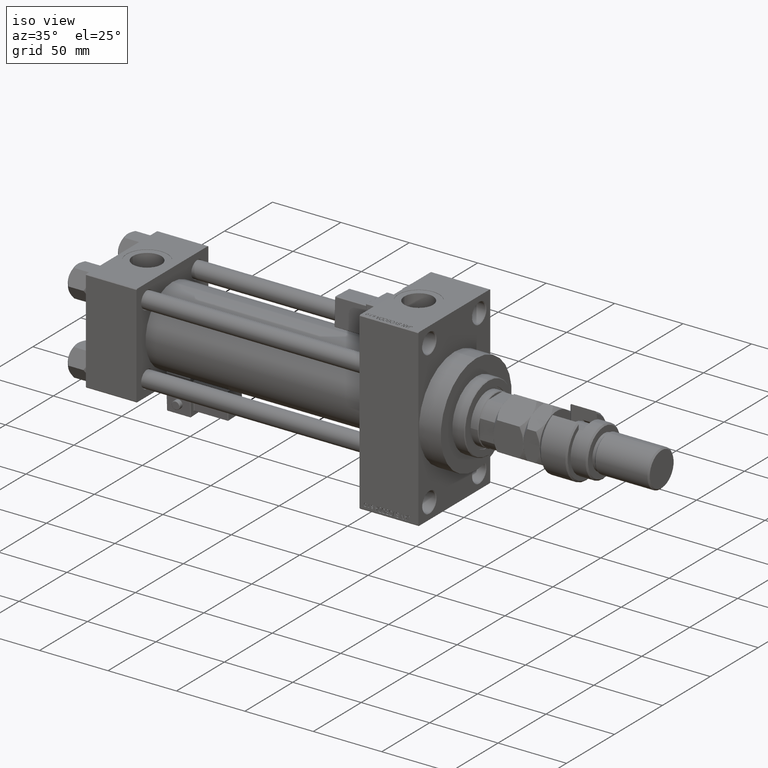
[diagram: clean part render]
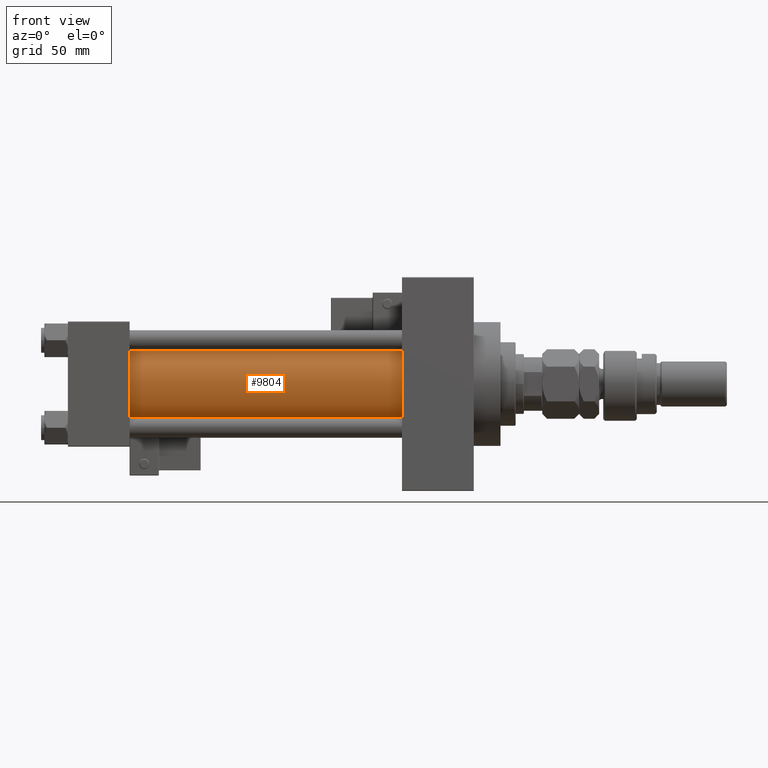
[diagram: tour spotlight — one face highlighted and labeled with its STEP entity id]
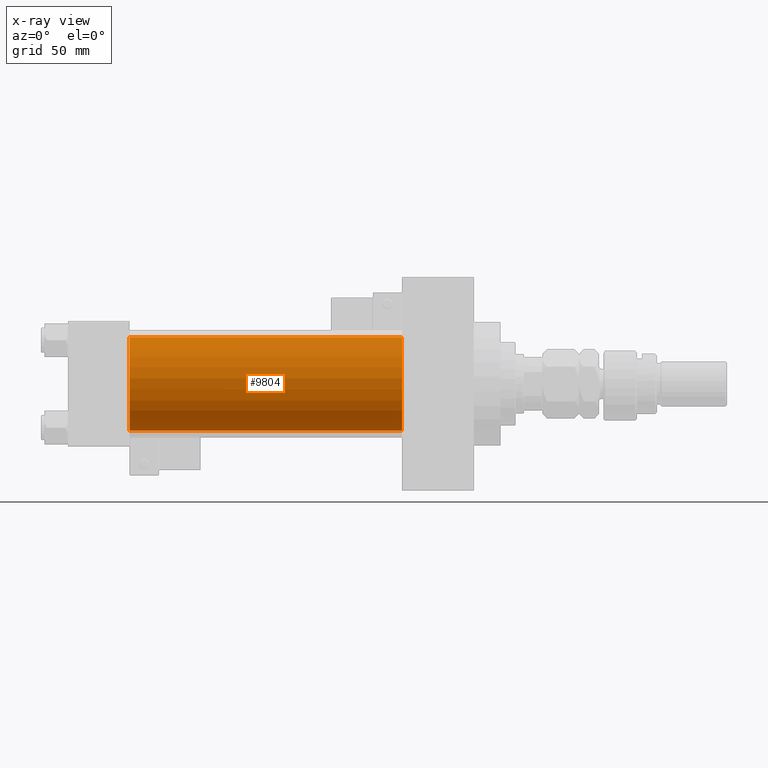
[diagram: x-ray of the same camera — body ghosted, this tour face saturated]
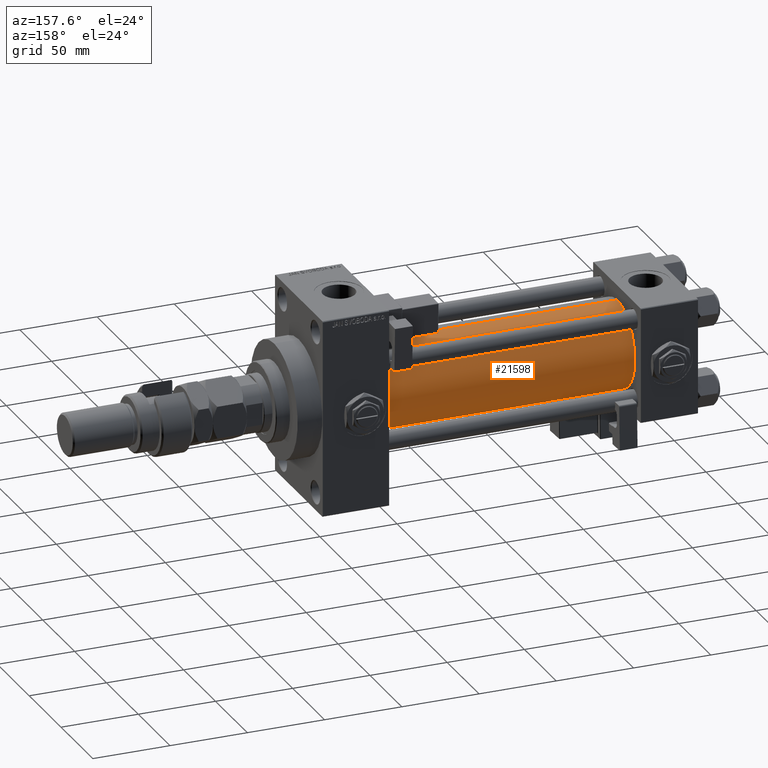
[diagram: tour spotlight — one face highlighted and labeled with its STEP entity id]
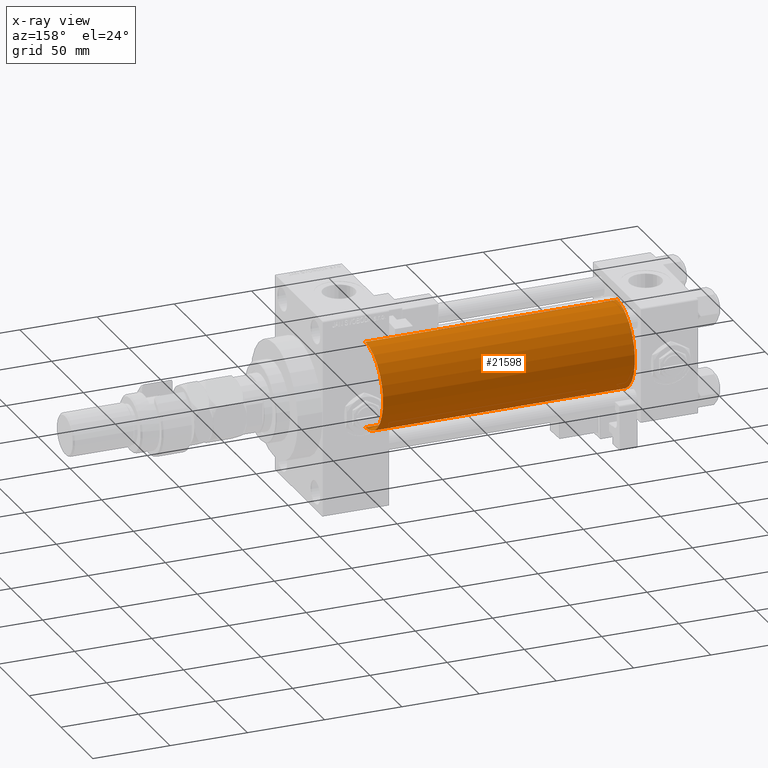
[diagram: x-ray of the same camera — body ghosted, this tour face saturated]
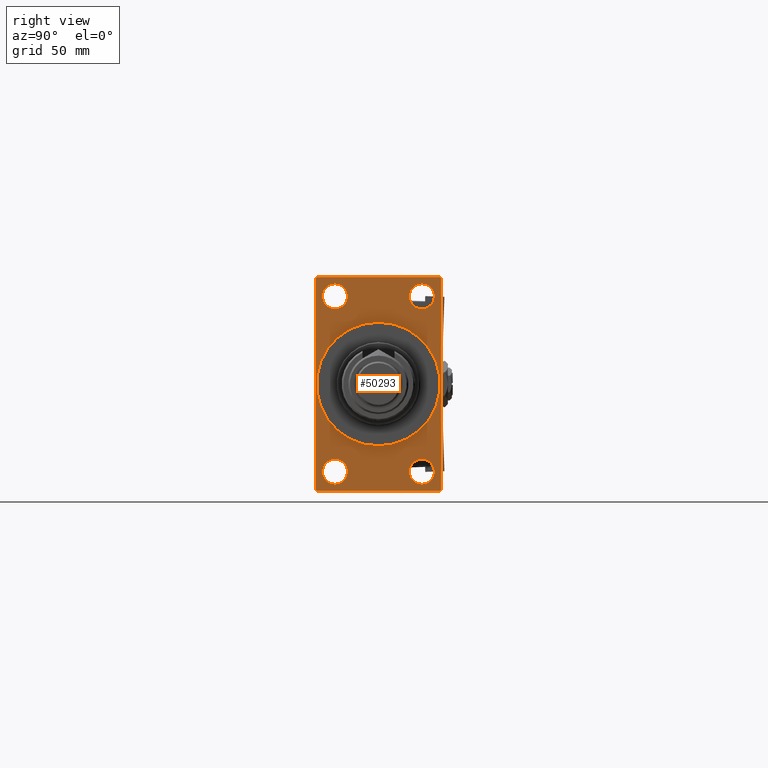
[diagram: tour spotlight — one face highlighted and labeled with its STEP entity id]
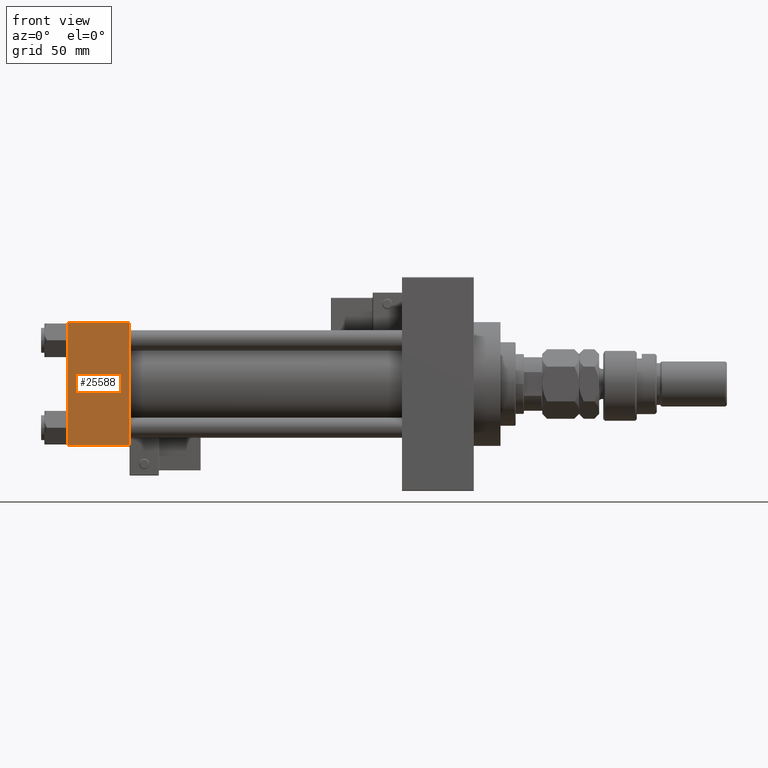
[diagram: tour spotlight — one face highlighted and labeled with its STEP entity id]
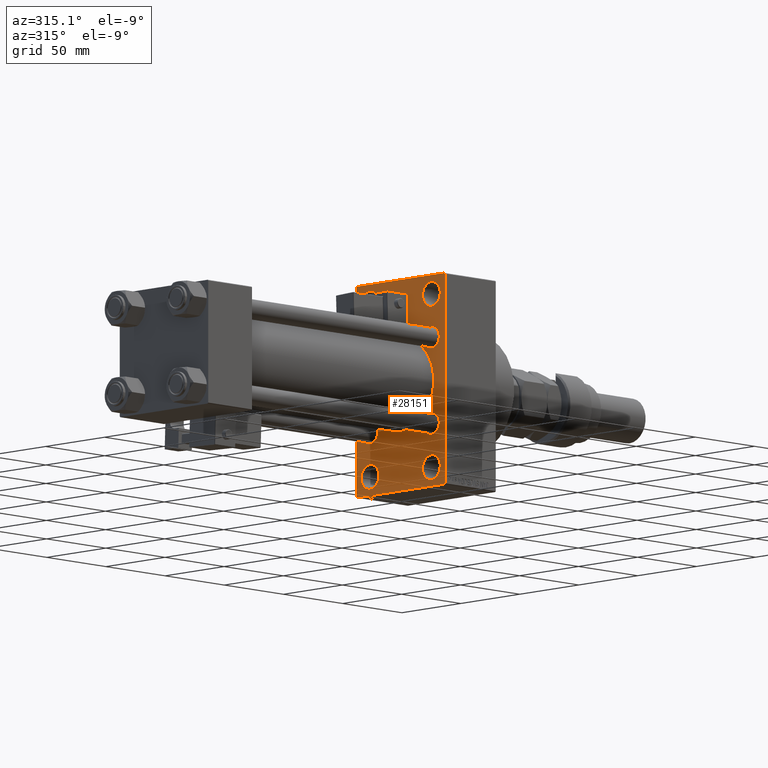
[diagram: tour spotlight — one face highlighted and labeled with its STEP entity id]
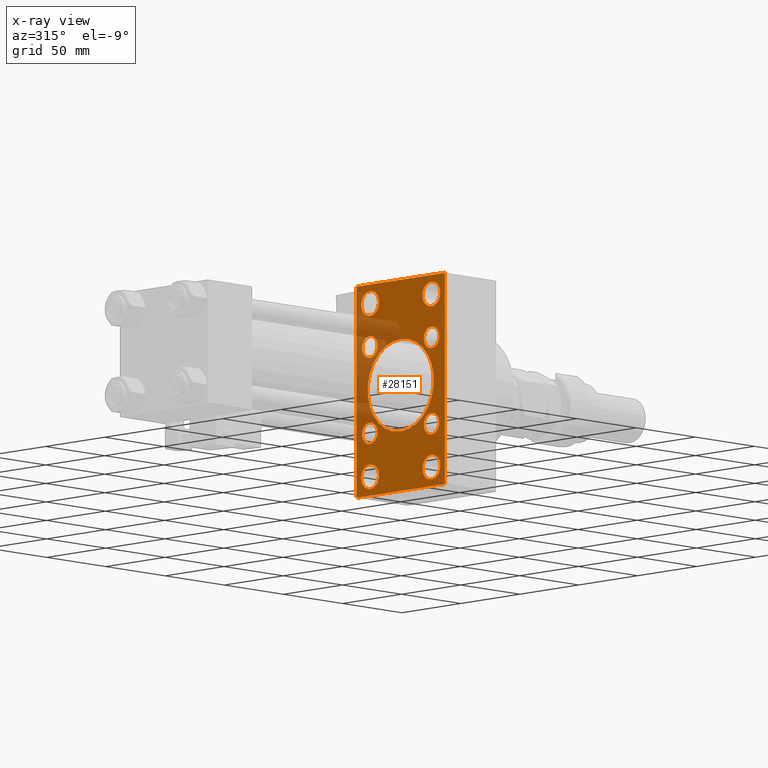
[diagram: x-ray of the same camera — body ghosted, this tour face saturated]
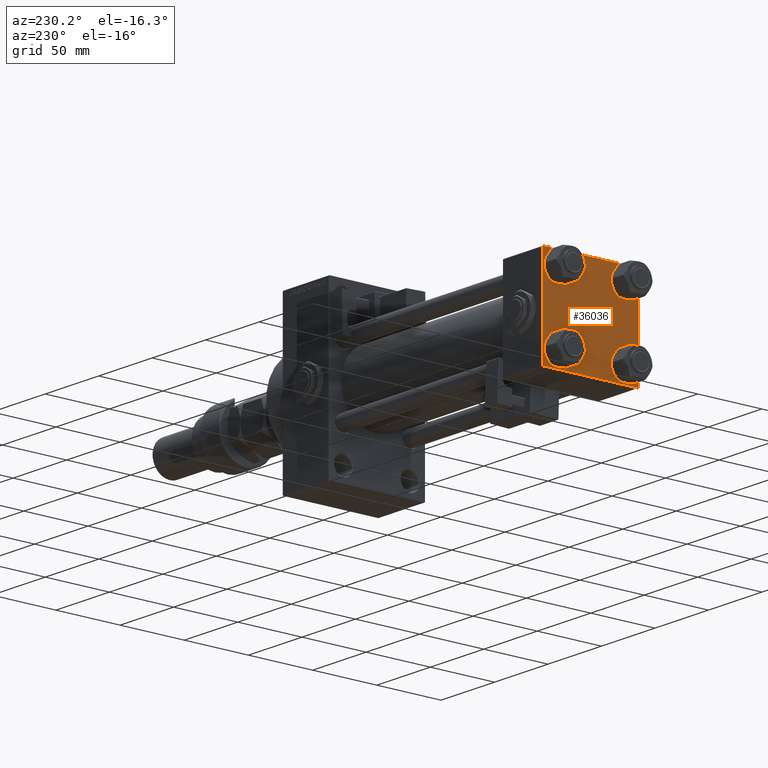
[diagram: tour spotlight — one face highlighted and labeled with its STEP entity id]
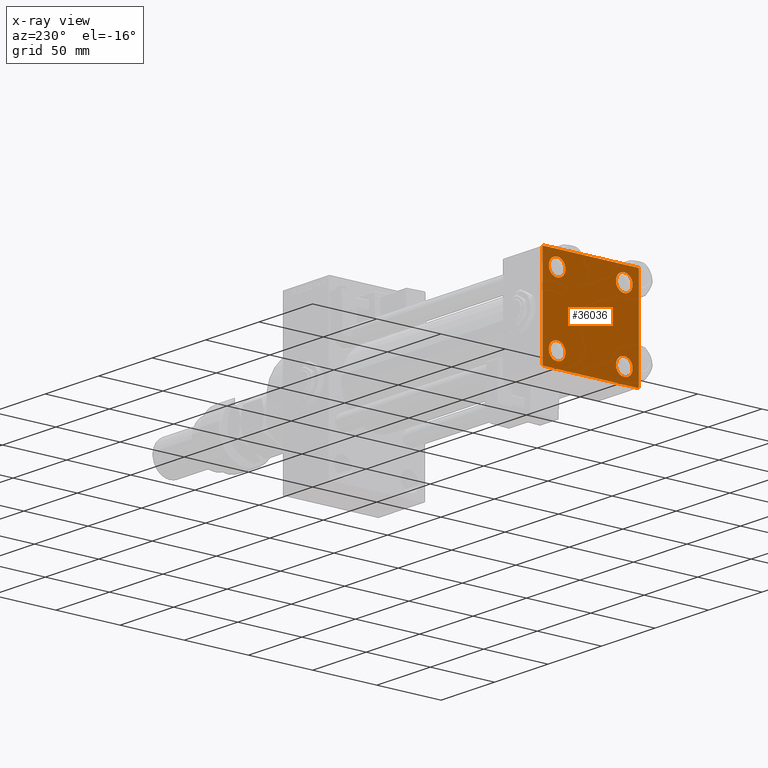
[diagram: x-ray of the same camera — body ghosted, this tour face saturated]
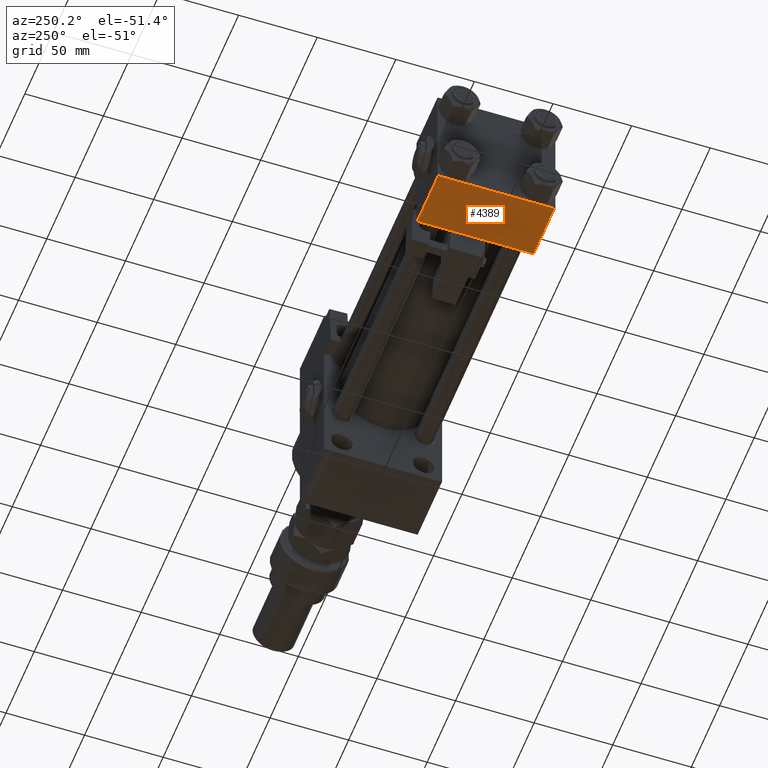
[diagram: tour spotlight — one face highlighted and labeled with its STEP entity id]
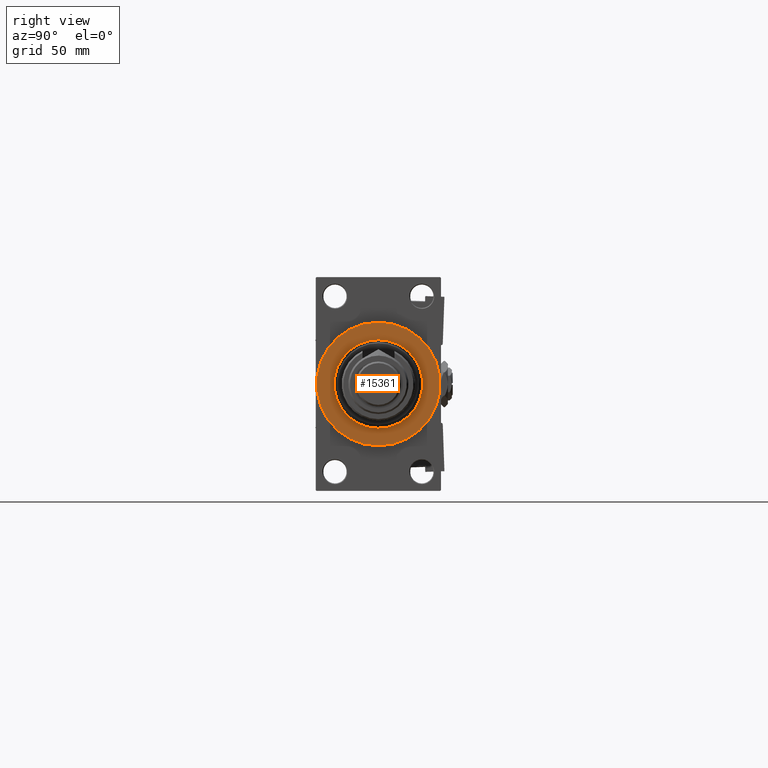
[diagram: tour spotlight — one face highlighted and labeled with its STEP entity id]
A machine part: a face-by-face anatomy tour. The part has 1443 B-rep faces; the first image is the clean iso view, then the 8 largest visible faces are spotlighted one at a time (largest first), each with its STEP entity span.

Face 1 — front view, entity #9804. An x-ray twin of the same camera follows (body ghosted, this face saturated) — the face is partly hidden behind the body. In plain terms, the highlighted cylindrical surface (partial cylindrical patch) has radius 28 mm, axis along (-1, -0, -0).
Definition (entity closure, byte-faithful):
#105 = CARTESIAN_POINT ( 'NONE',  ( 200.0000000000000000, -2.602085213965210642E-15, 28.00000000000000000 ) ) ;
#2214 = AXIS2_PLACEMENT_3D ( 'NONE', #24413, #41186, #32672 ) ;
#6364 = CYLINDRICAL_SURFACE ( 'NONE', #12749, 28.00000000000000000 ) ;
#7050 = EDGE_CURVE ( 'NONE', #13059, #13397, #50156, .T. ) ;
#9804 = ADVANCED_FACE ( 'NONE', ( #44046 ), #6364, .T. ) ;
#10522 = VERTEX_POINT ( 'NONE', #22740 ) ;
#11161 = DIRECTION ( 'NONE',  ( 1.000000000000000000, 0.000000000000000000, 0.000000000000000000 ) ) ;
#11306 = CARTESIAN_POINT ( 'NONE',  ( 200.0000000000000000, -2.602085213965210642E-15, 0.000000000000000000 ) ) ;
#12067 = ORIENTED_EDGE ( 'NONE', *, *, #7050, .F. ) ;
#12178 = CARTESIAN_POINT ( 'NONE',  ( 200.0000000000000000, 8.269258236473784371E-16, -28.00000000000000000 ) ) ;
#12749 = AXIS2_PLACEMENT_3D ( 'NONE', #11306, #27004, #18734 ) ;
#13059 = VERTEX_POINT ( 'NONE', #33270 ) ;
#13397 = VERTEX_POINT ( 'NONE', #42243 ) ;
#14169 = ORIENTED_EDGE ( 'NONE', *, *, #50422, .T. ) ;
#15473 = VERTEX_POINT ( 'NONE', #39891 ) ;
#17026 = VECTOR ( 'NONE', #20994, 1000.000000000000000 ) ;
#18734 = DIRECTION ( 'NONE',  ( 0.000000000000000000, 0.000000000000000000, 1.000000000000000000 ) ) ;
#19195 = ORIENTED_EDGE ( 'NONE', *, *, #45690, .T. ) ;
#19676 = VECTOR ( 'NONE', #28972, 1000.000000000000000 ) ;
#20994 = DIRECTION ( 'NONE',  ( -1.000000000000000000, -0.000000000000000000, -0.000000000000000000 ) ) ;
#21625 = CIRCLE ( 'NONE', #45362, 28.00000000000000000 ) ;
#22740 = CARTESIAN_POINT ( 'NONE',  ( 37.00000000000000711, -2.602085213965210642E-15, 28.00000000000000000 ) ) ;
#24413 = CARTESIAN_POINT ( 'NONE',  ( 37.00000000000000711, -2.602085213965210642E-15, 0.000000000000000000 ) ) ;
#27004 = DIRECTION ( 'NONE',  ( -1.000000000000000000, -0.000000000000000000, -0.000000000000000000 ) ) ;
#27946 = DIRECTION ( 'NONE',  ( 0.000000000000000000, 0.000000000000000000, -1.000000000000000000 ) ) ;
#28972 = DIRECTION ( 'NONE',  ( -1.000000000000000000, -0.000000000000000000, -0.000000000000000000 ) ) ;
#32672 = DIRECTION ( 'NONE',  ( 0.000000000000000000, 0.000000000000000000, 1.000000000000000000 ) ) ;
#32951 = CIRCLE ( 'NONE', #2214, 28.00000000000000000 ) ;
#33270 = CARTESIAN_POINT ( 'NONE',  ( 200.0000000000000000, 8.269258236473784371E-16, -28.00000000000000000 ) ) ;
#35709 = ORIENTED_EDGE ( 'NONE', *, *, #53279, .F. ) ;
#39891 = CARTESIAN_POINT ( 'NONE',  ( 200.0000000000000000, -2.602085213965210642E-15, 28.00000000000000000 ) ) ;
#41186 = DIRECTION ( 'NONE',  ( 1.000000000000000000, -0.000000000000000000, 0.000000000000000000 ) ) ;
#41624 = LINE ( 'NONE', #105, #17026 ) ;
#42243 = CARTESIAN_POINT ( 'NONE',  ( 37.00000000000000711, 8.269258236473784371E-16, -28.00000000000000000 ) ) ;
#44046 = FACE_OUTER_BOUND ( 'NONE', #50813, .T. ) ;
#45362 = AXIS2_PLACEMENT_3D ( 'NONE', #49130, #11161, #27946 ) ;
#45690 = EDGE_CURVE ( 'NONE', #15473, #10522, #41624, .T. ) ;
#49130 = CARTESIAN_POINT ( 'NONE',  ( 200.0000000000000000, -2.602085213965210642E-15, 0.000000000000000000 ) ) ;
#50156 = LINE ( 'NONE', #12178, #19676 ) ;
#50422 = EDGE_CURVE ( 'NONE', #10522, #13397, #32951, .T. ) ;
#50813 = EDGE_LOOP ( 'NONE', ( #12067, #35709, #19195, #14169 ) ) ;
#53279 = EDGE_CURVE ( 'NONE', #15473, #13059, #21625, .T. ) ;

Face 2 — auxiliary view, entity #21598. An x-ray twin of the same camera follows (body ghosted, this face saturated) — the face is partly hidden behind the body. In plain terms, the highlighted cylindrical surface (partial cylindrical patch) has radius 28 mm, axis along (-1, -0, -0).
Definition (entity closure, byte-faithful):
#105 = CARTESIAN_POINT ( 'NONE',  ( 200.0000000000000000, -2.602085213965210642E-15, 28.00000000000000000 ) ) ;
#1728 = AXIS2_PLACEMENT_3D ( 'NONE', #15181, #44629, #52615 ) ;
#7050 = EDGE_CURVE ( 'NONE', #13059, #13397, #50156, .T. ) ;
#8478 = CARTESIAN_POINT ( 'NONE',  ( 200.0000000000000000, -2.602085213965210642E-15, 0.000000000000000000 ) ) ;
#10522 = VERTEX_POINT ( 'NONE', #22740 ) ;
#12178 = CARTESIAN_POINT ( 'NONE',  ( 200.0000000000000000, 8.269258236473784371E-16, -28.00000000000000000 ) ) ;
#12546 = AXIS2_PLACEMENT_3D ( 'NONE', #8478, #20598, #16444 ) ;
#13059 = VERTEX_POINT ( 'NONE', #33270 ) ;
#13397 = VERTEX_POINT ( 'NONE', #42243 ) ;
#15181 = CARTESIAN_POINT ( 'NONE',  ( 200.0000000000000000, -2.602085213965210642E-15, 0.000000000000000000 ) ) ;
#15473 = VERTEX_POINT ( 'NONE', #39891 ) ;
#16310 = EDGE_CURVE ( 'NONE', #13397, #10522, #28747, .T. ) ;
#16444 = DIRECTION ( 'NONE',  ( 0.000000000000000000, 0.000000000000000000, -1.000000000000000000 ) ) ;
#17026 = VECTOR ( 'NONE', #20994, 1000.000000000000000 ) ;
#19676 = VECTOR ( 'NONE', #28972, 1000.000000000000000 ) ;
#20160 = DIRECTION ( 'NONE',  ( 0.000000000000000000, 0.000000000000000000, 1.000000000000000000 ) ) ;
#20598 = DIRECTION ( 'NONE',  ( 1.000000000000000000, 0.000000000000000000, 0.000000000000000000 ) ) ;
#20994 = DIRECTION ( 'NONE',  ( -1.000000000000000000, -0.000000000000000000, -0.000000000000000000 ) ) ;
#21598 = ADVANCED_FACE ( 'NONE', ( #45181 ), #49596, .T. ) ;
#22740 = CARTESIAN_POINT ( 'NONE',  ( 37.00000000000000711, -2.602085213965210642E-15, 28.00000000000000000 ) ) ;
#28747 = CIRCLE ( 'NONE', #37524, 28.00000000000000000 ) ;
#28972 = DIRECTION ( 'NONE',  ( -1.000000000000000000, -0.000000000000000000, -0.000000000000000000 ) ) ;
#31940 = ORIENTED_EDGE ( 'NONE', *, *, #45690, .F. ) ;
#33270 = CARTESIAN_POINT ( 'NONE',  ( 200.0000000000000000, 8.269258236473784371E-16, -28.00000000000000000 ) ) ;
#36288 = CIRCLE ( 'NONE', #12546, 28.00000000000000000 ) ;
#37203 = CARTESIAN_POINT ( 'NONE',  ( 37.00000000000000711, -2.602085213965210642E-15, 0.000000000000000000 ) ) ;
#37524 = AXIS2_PLACEMENT_3D ( 'NONE', #37203, #44919, #20160 ) ;
#39891 = CARTESIAN_POINT ( 'NONE',  ( 200.0000000000000000, -2.602085213965210642E-15, 28.00000000000000000 ) ) ;
#41624 = LINE ( 'NONE', #105, #17026 ) ;
#42243 = CARTESIAN_POINT ( 'NONE',  ( 37.00000000000000711, 8.269258236473784371E-16, -28.00000000000000000 ) ) ;
#44089 = EDGE_LOOP ( 'NONE', ( #48451, #48089, #52662, #31940 ) ) ;
#44310 = EDGE_CURVE ( 'NONE', #13059, #15473, #36288, .T. ) ;
#44629 = DIRECTION ( 'NONE',  ( -1.000000000000000000, -0.000000000000000000, -0.000000000000000000 ) ) ;
#44919 = DIRECTION ( 'NONE',  ( 1.000000000000000000, -0.000000000000000000, 0.000000000000000000 ) ) ;
#45181 = FACE_OUTER_BOUND ( 'NONE', #44089, .T. ) ;
#45690 = EDGE_CURVE ( 'NONE', #15473, #10522, #41624, .T. ) ;
#48089 = ORIENTED_EDGE ( 'NONE', *, *, #7050, .T. ) ;
#48451 = ORIENTED_EDGE ( 'NONE', *, *, #44310, .F. ) ;
#49596 = CYLINDRICAL_SURFACE ( 'NONE', #1728, 28.00000000000000000 ) ;
#50156 = LINE ( 'NONE', #12178, #19676 ) ;
#52615 = DIRECTION ( 'NONE',  ( 0.000000000000000000, 0.000000000000000000, 1.000000000000000000 ) ) ;
#52662 = ORIENTED_EDGE ( 'NONE', *, *, #16310, .T. ) ;

Face 3 — right view, entity #50293. In plain terms, the highlighted planar face has unit normal (-1, 0, 0).
Definition (entity closure, byte-faithful):
#176 = DIRECTION ( 'NONE',  ( -1.000000000000000000, 0.000000000000000000, -0.000000000000000000 ) ) ;
#214 = LINE ( 'NONE', #47413, #45940 ) ;
#220 = EDGE_CURVE ( 'NONE', #24417, #16024, #214, .T. ) ;
#1297 = AXIS2_PLACEMENT_3D ( 'NONE', #21695, #42318, #8773 ) ;
#1485 = EDGE_CURVE ( 'NONE', #3186, #26283, #20544, .T. ) ;
#2149 = ORIENTED_EDGE ( 'NONE', *, *, #3644, .T. ) ;
#2284 = EDGE_CURVE ( 'NONE', #26283, #3186, #31100, .T. ) ;
#3186 = VERTEX_POINT ( 'NONE', #34808 ) ;
#3497 = ORIENTED_EDGE ( 'NONE', *, *, #48131, .T. ) ;
#3644 = EDGE_CURVE ( 'NONE', #17784, #29930, #40809, .T. ) ;
#4322 = CARTESIAN_POINT ( 'NONE',  ( 243.0000000000000000, -37.49999999999999289, 63.50000000000000000 ) ) ;
#4383 = FACE_BOUND ( 'NONE', #33895, .T. ) ;
#4407 = ORIENTED_EDGE ( 'NONE', *, *, #34611, .T. ) ;
#4487 = CARTESIAN_POINT ( 'NONE',  ( 243.0000000000000000, 37.00000000000000000, 63.99999999999998579 ) ) ;
#5198 = ORIENTED_EDGE ( 'NONE', *, *, #18313, .F. ) ;
#5934 = DIRECTION ( 'NONE',  ( 0.000000000000000000, 0.000000000000000000, 1.000000000000000000 ) ) ;
#6070 = VECTOR ( 'NONE', #17247, 1000.000000000000000 ) ;
#6147 = AXIS2_PLACEMENT_3D ( 'NONE', #45052, #23342, #36535 ) ;
#6212 = ORIENTED_EDGE ( 'NONE', *, *, #25962, .F. ) ;
#6934 = CIRCLE ( 'NONE', #10458, 7.500000000000034639 ) ;
#8240 = DIRECTION ( 'NONE',  ( 0.000000000000000000, 0.000000000000000000, 1.000000000000000000 ) ) ;
#8773 = DIRECTION ( 'NONE',  ( -0.000000000000000000, 0.000000000000000000, 1.000000000000000000 ) ) ;
#8997 = EDGE_LOOP ( 'NONE', ( #48406, #23644, #19118, #12262, #5198, #4407, #3497, #39953 ) ) ;
#9295 = FACE_BOUND ( 'NONE', #18451, .T. ) ;
#9528 = LINE ( 'NONE', #51362, #6070 ) ;
#9722 = DIRECTION ( 'NONE',  ( -0.000000000000000000, -0.7071067811865524577, -0.7071067811865426878 ) ) ;
#9946 = VECTOR ( 'NONE', #40477, 1000.000000000000000 ) ;
#10077 = CARTESIAN_POINT ( 'NONE',  ( 243.0000000000000000, -25.99999999999999645, -44.99999999999995737 ) ) ;
#10144 = CARTESIAN_POINT ( 'NONE',  ( 243.0000000000000000, 26.00000000000000000, -60.00000000000002842 ) ) ;
#10458 = AXIS2_PLACEMENT_3D ( 'NONE', #30693, #13355, #5934 ) ;
#10604 = VERTEX_POINT ( 'NONE', #10077 ) ;
#10628 = EDGE_CURVE ( 'NONE', #38239, #10604, #15390, .T. ) ;
#10802 = VERTEX_POINT ( 'NONE', #10839 ) ;
#10839 = CARTESIAN_POINT ( 'NONE',  ( 243.0000000000000000, 26.00000000000000000, 44.99999999999995737 ) ) ;
#10989 = DIRECTION ( 'NONE',  ( 0.000000000000000000, 0.000000000000000000, 1.000000000000000000 ) ) ;
#11902 = CIRCLE ( 'NONE', #41733, 7.500000000000034639 ) ;
#12262 = ORIENTED_EDGE ( 'NONE', *, *, #30814, .T. ) ;
#12287 = DIRECTION ( 'NONE',  ( 0.000000000000000000, 0.7071067811865376918, -0.7071067811865573427 ) ) ;
#12445 = EDGE_CURVE ( 'NONE', #10802, #36138, #11902, .T. ) ;
#13156 = FACE_OUTER_BOUND ( 'NONE', #8997, .T. ) ;
#13352 = VERTEX_POINT ( 'NONE', #29605 ) ;
#13355 = DIRECTION ( 'NONE',  ( -1.000000000000000000, 0.000000000000000000, -0.000000000000000000 ) ) ;
#13551 = CARTESIAN_POINT ( 'NONE',  ( 243.0000000000000000, -37.00000000000002132, -64.00000000000001421 ) ) ;
#13650 = DIRECTION ( 'NONE',  ( 0.000000000000000000, -0.7071067811865474617, 0.7071067811865474617 ) ) ;
#14348 = AXIS2_PLACEMENT_3D ( 'NONE', #40548, #32310, #54015 ) ;
#14438 = VERTEX_POINT ( 'NONE', #53778 ) ;
#14475 = CARTESIAN_POINT ( 'NONE',  ( 243.0000000000000000, -25.99999999999999645, -52.49999999999999289 ) ) ;
#15390 = CIRCLE ( 'NONE', #22414, 7.500000000000034639 ) ;
#15622 = CARTESIAN_POINT ( 'NONE',  ( 243.0000000000000000, -37.00000000000001421, 63.99999999999997158 ) ) ;
#16024 = VERTEX_POINT ( 'NONE', #4322 ) ;
#16214 = DIRECTION ( 'NONE',  ( -1.000000000000000000, 0.000000000000000000, -0.000000000000000000 ) ) ;
#16590 = CARTESIAN_POINT ( 'NONE',  ( 243.0000000000000000, -25.99999999999999645, 52.50000000000000000 ) ) ;
#17247 = DIRECTION ( 'NONE',  ( 0.000000000000000000, 0.000000000000000000, -1.000000000000000000 ) ) ;
#17280 = FACE_BOUND ( 'NONE', #39905, .T. ) ;
#17784 = VERTEX_POINT ( 'NONE', #10144 ) ;
#17946 = EDGE_LOOP ( 'NONE', ( #18335, #34913 ) ) ;
#18232 = EDGE_CURVE ( 'NONE', #36138, #10802, #29673, .T. ) ;
#18313 = EDGE_CURVE ( 'NONE', #14438, #50968, #32903, .T. ) ;
#18335 = ORIENTED_EDGE ( 'NONE', *, *, #12445, .T. ) ;
#18451 = EDGE_LOOP ( 'NONE', ( #40723, #40540 ) ) ;
#19118 = ORIENTED_EDGE ( 'NONE', *, *, #21141, .F. ) ;
#19427 = DIRECTION ( 'NONE',  ( -1.000000000000000000, 0.000000000000000000, -0.000000000000000000 ) ) ;
#19525 = CARTESIAN_POINT ( 'NONE',  ( 243.0000000000000000, -25.99999999999999645, -52.49999999999999289 ) ) ;
#19934 = DIRECTION ( 'NONE',  ( -1.000000000000000000, 0.000000000000000000, -0.000000000000000000 ) ) ;
#19979 = DIRECTION ( 'NONE',  ( -0.000000000000000000, 0.7071067811865574537, 0.7071067811865376918 ) ) ;
#20544 = CIRCLE ( 'NONE', #14348, 7.500000000000034639 ) ;
#20838 = EDGE_CURVE ( 'NONE', #16024, #44785, #9528, .T. ) ;
#21141 = EDGE_CURVE ( 'NONE', #13352, #29581, #48878, .T. ) ;
#21479 = AXIS2_PLACEMENT_3D ( 'NONE', #37124, #16214, #8240 ) ;
#21695 = CARTESIAN_POINT ( 'NONE',  ( 243.0000000000000000, 0.000000000000000000, 0.000000000000000000 ) ) ;
#22092 = ORIENTED_EDGE ( 'NONE', *, *, #23528, .T. ) ;
#22414 = AXIS2_PLACEMENT_3D ( 'NONE', #14475, #31273, #48049 ) ;
#22500 = EDGE_CURVE ( 'NONE', #44785, #29581, #46378, .T. ) ;
#23339 = ORIENTED_EDGE ( 'NONE', *, *, #38817, .F. ) ;
#23342 = DIRECTION ( 'NONE',  ( 1.000000000000000000, 0.000000000000000000, 0.000000000000000000 ) ) ;
#23528 = EDGE_CURVE ( 'NONE', #29930, #17784, #6934, .T. ) ;
#23644 = ORIENTED_EDGE ( 'NONE', *, *, #22500, .T. ) ;
#23832 = DIRECTION ( 'NONE',  ( 0.000000000000000000, -5.421010862427522170E-17, -1.000000000000000000 ) ) ;
#23834 = LINE ( 'NONE', #24108, #42873 ) ;
#24106 = CARTESIAN_POINT ( 'NONE',  ( 243.0000000000000000, 26.00000000000000000, 52.49999999999999289 ) ) ;
#24108 = CARTESIAN_POINT ( 'NONE',  ( 243.0000000000000000, 37.49999999999999289, -63.50000000000007105 ) ) ;
#24417 = VERTEX_POINT ( 'NONE', #15622 ) ;
#24421 = VECTOR ( 'NONE', #23832, 1000.000000000000000 ) ;
#24471 = DIRECTION ( 'NONE',  ( 0.000000000000000000, 0.000000000000000000, 1.000000000000000000 ) ) ;
#25962 = EDGE_CURVE ( 'NONE', #50276, #26677, #43043, .T. ) ;
#26283 = VERTEX_POINT ( 'NONE', #27670 ) ;
#26677 = VERTEX_POINT ( 'NONE', #53980 ) ;
#27339 = AXIS2_PLACEMENT_3D ( 'NONE', #46192, #28620, #42055 ) ;
#27488 = VERTEX_POINT ( 'NONE', #4487 ) ;
#27670 = CARTESIAN_POINT ( 'NONE',  ( 243.0000000000000000, -25.99999999999999645, 60.00000000000003553 ) ) ;
#28620 = DIRECTION ( 'NONE',  ( 1.000000000000000000, 0.000000000000000000, 0.000000000000000000 ) ) ;
#29259 = DIRECTION ( 'NONE',  ( 0.000000000000000000, 0.000000000000000000, 1.000000000000000000 ) ) ;
#29581 = VERTEX_POINT ( 'NONE', #13551 ) ;
#29605 = CARTESIAN_POINT ( 'NONE',  ( 243.0000000000000000, 37.00000000000004974, -64.00000000000000000 ) ) ;
#29673 = CIRCLE ( 'NONE', #52535, 7.500000000000034639 ) ;
#29679 = FACE_BOUND ( 'NONE', #17946, .T. ) ;
#29930 = VERTEX_POINT ( 'NONE', #39809 ) ;
#30693 = CARTESIAN_POINT ( 'NONE',  ( 243.0000000000000000, 26.00000000000000000, -52.49999999999999289 ) ) ;
#30814 = EDGE_CURVE ( 'NONE', #13352, #50968, #23834, .T. ) ;
#31100 = CIRCLE ( 'NONE', #40765, 7.500000000000034639 ) ;
#31213 = CARTESIAN_POINT ( 'NONE',  ( 243.0000000000000000, 26.00000000000000000, 60.00000000000002842 ) ) ;
#31273 = DIRECTION ( 'NONE',  ( -1.000000000000000000, 0.000000000000000000, -0.000000000000000000 ) ) ;
#32093 = DIRECTION ( 'NONE',  ( 0.000000000000000000, -1.000000000000000000, -1.850371707708594563E-16 ) ) ;
#32310 = DIRECTION ( 'NONE',  ( -1.000000000000000000, 0.000000000000000000, -0.000000000000000000 ) ) ;
#32509 = LINE ( 'NONE', #49578, #9946 ) ;
#32903 = LINE ( 'NONE', #53796, #24421 ) ;
#33008 = DIRECTION ( 'NONE',  ( -1.000000000000000000, 0.000000000000000000, -0.000000000000000000 ) ) ;
#33746 = CARTESIAN_POINT ( 'NONE',  ( 243.0000000000000000, -37.00000000000002132, -64.00000000000001421 ) ) ;
#33895 = EDGE_LOOP ( 'NONE', ( #6212, #23339 ) ) ;
#34611 = EDGE_CURVE ( 'NONE', #14438, #27488, #50825, .T. ) ;
#34808 = CARTESIAN_POINT ( 'NONE',  ( 243.0000000000000000, -25.99999999999999645, 44.99999999999996447 ) ) ;
#34913 = ORIENTED_EDGE ( 'NONE', *, *, #18232, .T. ) ;
#36138 = VERTEX_POINT ( 'NONE', #31213 ) ;
#36208 = CARTESIAN_POINT ( 'NONE',  ( 243.0000000000000000, 37.49999999999999289, -64.00000000000000000 ) ) ;
#36535 = DIRECTION ( 'NONE',  ( 0.000000000000000000, 0.000000000000000000, -1.000000000000000000 ) ) ;
#37124 = CARTESIAN_POINT ( 'NONE',  ( 243.0000000000000000, 26.00000000000000000, -52.49999999999999289 ) ) ;
#37343 = CIRCLE ( 'NONE', #53173, 7.500000000000034639 ) ;
#38239 = VERTEX_POINT ( 'NONE', #52687 ) ;
#38423 = CARTESIAN_POINT ( 'NONE',  ( 243.0000000000000000, 37.00000000000000000, 63.99999999999998579 ) ) ;
#38729 = PLANE ( 'NONE',  #1297 ) ;
#38817 = EDGE_CURVE ( 'NONE', #26677, #50276, #49304, .T. ) ;
#39412 = VECTOR ( 'NONE', #13650, 1000.000000000000114 ) ;
#39809 = CARTESIAN_POINT ( 'NONE',  ( 243.0000000000000000, 26.00000000000000000, -44.99999999999995737 ) ) ;
#39905 = EDGE_LOOP ( 'NONE', ( #2149, #22092 ) ) ;
#39953 = ORIENTED_EDGE ( 'NONE', *, *, #220, .T. ) ;
#40477 = DIRECTION ( 'NONE',  ( 0.000000000000000000, -1.000000000000000000, -1.850371707708594563E-16 ) ) ;
#40540 = ORIENTED_EDGE ( 'NONE', *, *, #2284, .T. ) ;
#40548 = CARTESIAN_POINT ( 'NONE',  ( 243.0000000000000000, -25.99999999999999645, 52.50000000000000000 ) ) ;
#40723 = ORIENTED_EDGE ( 'NONE', *, *, #1485, .T. ) ;
#40765 = AXIS2_PLACEMENT_3D ( 'NONE', #16590, #19934, #29259 ) ;
#40809 = CIRCLE ( 'NONE', #21479, 7.500000000000034639 ) ;
#40881 = DIRECTION ( 'NONE',  ( 0.000000000000000000, 0.000000000000000000, 1.000000000000000000 ) ) ;
#41733 = AXIS2_PLACEMENT_3D ( 'NONE', #44834, #176, #10989 ) ;
#42052 = FACE_BOUND ( 'NONE', #52169, .T. ) ;
#42055 = DIRECTION ( 'NONE',  ( 0.000000000000000000, 0.000000000000000000, -1.000000000000000000 ) ) ;
#42318 = DIRECTION ( 'NONE',  ( -1.000000000000000000, 0.000000000000000000, -0.000000000000000000 ) ) ;
#42635 = ORIENTED_EDGE ( 'NONE', *, *, #10628, .T. ) ;
#42873 = VECTOR ( 'NONE', #19979, 999.9999999999998863 ) ;
#43043 = CIRCLE ( 'NONE', #6147, 37.00000000000000000 ) ;
#44785 = VERTEX_POINT ( 'NONE', #52934 ) ;
#44834 = CARTESIAN_POINT ( 'NONE',  ( 243.0000000000000000, 26.00000000000000000, 52.49999999999999289 ) ) ;
#45052 = CARTESIAN_POINT ( 'NONE',  ( 243.0000000000000000, 0.000000000000000000, 0.000000000000000000 ) ) ;
#45635 = ORIENTED_EDGE ( 'NONE', *, *, #50955, .T. ) ;
#45940 = VECTOR ( 'NONE', #9722, 1000.000000000000000 ) ;
#46192 = CARTESIAN_POINT ( 'NONE',  ( 243.0000000000000000, 0.000000000000000000, 0.000000000000000000 ) ) ;
#46378 = LINE ( 'NONE', #33746, #47280 ) ;
#47280 = VECTOR ( 'NONE', #12287, 1000.000000000000114 ) ;
#47413 = CARTESIAN_POINT ( 'NONE',  ( 243.0000000000000000, -37.49999999999999289, 63.50000000000000000 ) ) ;
#48049 = DIRECTION ( 'NONE',  ( 0.000000000000000000, 0.000000000000000000, 1.000000000000000000 ) ) ;
#48131 = EDGE_CURVE ( 'NONE', #27488, #24417, #32509, .T. ) ;
#48406 = ORIENTED_EDGE ( 'NONE', *, *, #20838, .T. ) ;
#48878 = LINE ( 'NONE', #36208, #49127 ) ;
#49127 = VECTOR ( 'NONE', #32093, 1000.000000000000000 ) ;
#49304 = CIRCLE ( 'NONE', #27339, 37.00000000000000000 ) ;
#49578 = CARTESIAN_POINT ( 'NONE',  ( 243.0000000000000000, 37.50000000000000000, 63.99999999999998579 ) ) ;
#50276 = VERTEX_POINT ( 'NONE', #50606 ) ;
#50293 = ADVANCED_FACE ( 'NONE', ( #9295, #42052, #17280, #29679, #4383, #13156 ), #38729, .F. ) ;
#50606 = CARTESIAN_POINT ( 'NONE',  ( 243.0000000000000000, 0.000000000000000000, 37.00000000000000000 ) ) ;
#50825 = LINE ( 'NONE', #38423, #39412 ) ;
#50955 = EDGE_CURVE ( 'NONE', #10604, #38239, #37343, .T. ) ;
#50968 = VERTEX_POINT ( 'NONE', #53093 ) ;
#51362 = CARTESIAN_POINT ( 'NONE',  ( 243.0000000000000000, -37.49999999999999289, 63.99999999999997158 ) ) ;
#52169 = EDGE_LOOP ( 'NONE', ( #42635, #45635 ) ) ;
#52535 = AXIS2_PLACEMENT_3D ( 'NONE', #24106, #19427, #40881 ) ;
#52687 = CARTESIAN_POINT ( 'NONE',  ( 243.0000000000000000, -25.99999999999999645, -60.00000000000002842 ) ) ;
#52934 = CARTESIAN_POINT ( 'NONE',  ( 243.0000000000000000, -37.49999999999999289, -63.50000000000002842 ) ) ;
#53093 = CARTESIAN_POINT ( 'NONE',  ( 243.0000000000000000, 37.49999999999999289, -63.50000000000007105 ) ) ;
#53173 = AXIS2_PLACEMENT_3D ( 'NONE', #19525, #33008, #24471 ) ;
#53778 = CARTESIAN_POINT ( 'NONE',  ( 243.0000000000000000, 37.50000000000000000, 63.49999999999998579 ) ) ;
#53796 = CARTESIAN_POINT ( 'NONE',  ( 243.0000000000000000, 37.50000000000000000, 63.99999999999998579 ) ) ;
#53980 = CARTESIAN_POINT ( 'NONE',  ( 243.0000000000000000, 4.531193156845206793E-15, -37.00000000000000000 ) ) ;
#54015 = DIRECTION ( 'NONE',  ( 0.000000000000000000, 0.000000000000000000, 1.000000000000000000 ) ) ;

Face 4 — front view, entity #25588. In plain terms, the highlighted planar face has unit normal (0, 1, 0).
Definition (entity closure, byte-faithful):
#659 = EDGE_CURVE ( 'NONE', #12452, #22554, #47025, .T. ) ;
#859 = VECTOR ( 'NONE', #44357, 1000.000000000000000 ) ;
#2244 = CARTESIAN_POINT ( 'NONE',  ( 0.000000000000000000, -37.50000000000000711, 36.99999999999999289 ) ) ;
#2444 = EDGE_CURVE ( 'NONE', #14088, #37577, #28387, .T. ) ;
#5522 = VECTOR ( 'NONE', #13454, 1000.000000000000000 ) ;
#8107 = CARTESIAN_POINT ( 'NONE',  ( 37.00000000000000000, -37.50000000000000711, 37.49999999999999289 ) ) ;
#10423 = CARTESIAN_POINT ( 'NONE',  ( 37.00000000000000000, -37.50000000000000711, 36.99999999999999289 ) ) ;
#12452 = VERTEX_POINT ( 'NONE', #27780 ) ;
#13454 = DIRECTION ( 'NONE',  ( 0.000000000000000000, 9.251858538542971581E-17, -1.000000000000000000 ) ) ;
#13612 = ORIENTED_EDGE ( 'NONE', *, *, #659, .F. ) ;
#13874 = ORIENTED_EDGE ( 'NONE', *, *, #2444, .T. ) ;
#13954 = VECTOR ( 'NONE', #26666, 1000.000000000000000 ) ;
#14088 = VERTEX_POINT ( 'NONE', #2244 ) ;
#17922 = VECTOR ( 'NONE', #20405, 1000.000000000000000 ) ;
#20405 = DIRECTION ( 'NONE',  ( 0.000000000000000000, 9.251858538542971581E-17, -1.000000000000000000 ) ) ;
#21583 = EDGE_CURVE ( 'NONE', #37577, #22554, #36383, .T. ) ;
#21657 = ORIENTED_EDGE ( 'NONE', *, *, #21583, .T. ) ;
#22554 = VERTEX_POINT ( 'NONE', #45844 ) ;
#24539 = CARTESIAN_POINT ( 'NONE',  ( 0.000000000000000000, -37.50000000000000000, -37.00000000000003553 ) ) ;
#25588 = ADVANCED_FACE ( 'NONE', ( #36989 ), #33146, .F. ) ;
#26155 = DIRECTION ( 'NONE',  ( 0.000000000000000000, -9.251858538542971581E-17, 1.000000000000000000 ) ) ;
#26666 = DIRECTION ( 'NONE',  ( -1.000000000000000000, 0.000000000000000000, 0.000000000000000000 ) ) ;
#27780 = CARTESIAN_POINT ( 'NONE',  ( 37.00000000000000000, -37.50000000000000711, 36.99999999999999289 ) ) ;
#28387 = LINE ( 'NONE', #36642, #17922 ) ;
#33146 = PLANE ( 'NONE',  #50109 ) ;
#34103 = CARTESIAN_POINT ( 'NONE',  ( 37.00000000000000000, -37.50000000000000711, 37.49999999999999289 ) ) ;
#35674 = EDGE_CURVE ( 'NONE', #12452, #14088, #48121, .T. ) ;
#36383 = LINE ( 'NONE', #48762, #859 ) ;
#36642 = CARTESIAN_POINT ( 'NONE',  ( 0.000000000000000000, -37.50000000000000711, 37.49999999999999289 ) ) ;
#36989 = FACE_OUTER_BOUND ( 'NONE', #49987, .T. ) ;
#37528 = DIRECTION ( 'NONE',  ( -0.000000000000000000, 1.000000000000000000, 9.251858538542971581E-17 ) ) ;
#37577 = VERTEX_POINT ( 'NONE', #24539 ) ;
#39464 = ORIENTED_EDGE ( 'NONE', *, *, #35674, .T. ) ;
#44357 = DIRECTION ( 'NONE',  ( 1.000000000000000000, 0.000000000000000000, 0.000000000000000000 ) ) ;
#45844 = CARTESIAN_POINT ( 'NONE',  ( 37.00000000000000000, -37.50000000000000000, -37.00000000000003553 ) ) ;
#47025 = LINE ( 'NONE', #34103, #5522 ) ;
#48121 = LINE ( 'NONE', #10423, #13954 ) ;
#48762 = CARTESIAN_POINT ( 'NONE',  ( 37.00000000000000000, -37.50000000000000000, -37.00000000000003553 ) ) ;
#49987 = EDGE_LOOP ( 'NONE', ( #13874, #21657, #13612, #39464 ) ) ;
#50109 = AXIS2_PLACEMENT_3D ( 'NONE', #8107, #37528, #26155 ) ;

Face 5 — auxiliary view, entity #28151. An x-ray twin of the same camera follows (body ghosted, this face saturated) — the face is partly hidden behind the body. In plain terms, the highlighted planar face has unit normal (-1, 0, 0).
Definition (entity closure, byte-faithful):
#92 = CARTESIAN_POINT ( 'NONE',  ( 200.0000000000000000, -37.49999999999999289, 63.50000000000000000 ) ) ;
#509 = DIRECTION ( 'NONE',  ( 0.000000000000000000, 0.000000000000000000, 1.000000000000000000 ) ) ;
#1879 = AXIS2_PLACEMENT_3D ( 'NONE', #11807, #24727, #15922 ) ;
#1975 = VERTEX_POINT ( 'NONE', #49238 ) ;
#2089 = EDGE_CURVE ( 'NONE', #36975, #22477, #21398, .T. ) ;
#2102 = AXIS2_PLACEMENT_3D ( 'NONE', #2432, #11208, #27994 ) ;
#2299 = DIRECTION ( 'NONE',  ( -0.000000000000000000, -0.7071067811865574537, -0.7071067811865376918 ) ) ;
#2432 = CARTESIAN_POINT ( 'NONE',  ( 200.0000000000000000, 26.14999999999999858, 26.15000000000000213 ) ) ;
#2840 = EDGE_LOOP ( 'NONE', ( #26065, #50009 ) ) ;
#2890 = AXIS2_PLACEMENT_3D ( 'NONE', #17296, #21433, #11502 ) ;
#3044 = DIRECTION ( 'NONE',  ( 1.000000000000000000, -0.000000000000000000, 0.000000000000000000 ) ) ;
#3473 = ORIENTED_EDGE ( 'NONE', *, *, #48342, .T. ) ;
#3633 = DIRECTION ( 'NONE',  ( 0.000000000000000000, -5.421010862427522170E-17, -1.000000000000000000 ) ) ;
#3779 = DIRECTION ( 'NONE',  ( 0.000000000000000000, 0.000000000000000000, 1.000000000000000000 ) ) ;
#3789 = CARTESIAN_POINT ( 'NONE',  ( 200.0000000000000000, -26.14999999999999147, 32.65000000000001990 ) ) ;
#3929 = ORIENTED_EDGE ( 'NONE', *, *, #49137, .T. ) ;
#4509 = VERTEX_POINT ( 'NONE', #29401 ) ;
#4618 = EDGE_CURVE ( 'NONE', #5688, #9395, #29456, .T. ) ;
#4620 = DIRECTION ( 'NONE',  ( 1.000000000000000000, -0.000000000000000000, 0.000000000000000000 ) ) ;
#4904 = DIRECTION ( 'NONE',  ( 0.000000000000000000, 0.000000000000000000, 1.000000000000000000 ) ) ;
#4949 = DIRECTION ( 'NONE',  ( 0.000000000000000000, 0.7071067811865474617, -0.7071067811865474617 ) ) ;
#5150 = EDGE_LOOP ( 'NONE', ( #13609, #3473, #51104, #53175, #53074, #14245, #22197, #18311 ) ) ;
#5291 = CIRCLE ( 'NONE', #43062, 6.500000000000008882 ) ;
#5304 = CARTESIAN_POINT ( 'NONE',  ( 200.0000000000000000, 50.49999999999950973, -50.50000000000090949 ) ) ;
#5659 = EDGE_LOOP ( 'NONE', ( #26008, #43367 ) ) ;
#5688 = VERTEX_POINT ( 'NONE', #27726 ) ;
#5778 = CARTESIAN_POINT ( 'NONE',  ( 200.0000000000000000, -25.99999999999999645, -52.49999999999999289 ) ) ;
#5958 = DIRECTION ( 'NONE',  ( 1.000000000000000000, -0.000000000000000000, 0.000000000000000000 ) ) ;
#5997 = DIRECTION ( 'NONE',  ( 1.000000000000000000, -0.000000000000000000, 0.000000000000000000 ) ) ;
#6362 = VECTOR ( 'NONE', #4949, 1000.000000000000114 ) ;
#6676 = EDGE_CURVE ( 'NONE', #49841, #34223, #53359, .T. ) ;
#6823 = CARTESIAN_POINT ( 'NONE',  ( 200.0000000000000000, 26.14999999999999858, -26.15000000000000213 ) ) ;
#7347 = CIRCLE ( 'NONE', #2102, 6.500000000000008882 ) ;
#8330 = ORIENTED_EDGE ( 'NONE', *, *, #37897, .T. ) ;
#8478 = CARTESIAN_POINT ( 'NONE',  ( 200.0000000000000000, -2.602085213965210642E-15, 0.000000000000000000 ) ) ;
#8483 = CIRCLE ( 'NONE', #42704, 7.500000000000007105 ) ;
#8953 = DIRECTION ( 'NONE',  ( 1.000000000000000000, -0.000000000000000000, 0.000000000000000000 ) ) ;
#9101 = AXIS2_PLACEMENT_3D ( 'NONE', #31228, #52677, #43870 ) ;
#9395 = VERTEX_POINT ( 'NONE', #21800 ) ;
#9505 = VECTOR ( 'NONE', #17689, 1000.000000000000000 ) ;
#9508 = DIRECTION ( 'NONE',  ( 0.000000000000000000, -1.000000000000000000, -1.850371707708594563E-16 ) ) ;
#9661 = AXIS2_PLACEMENT_3D ( 'NONE', #41259, #23405, #36321 ) ;
#10090 = VERTEX_POINT ( 'NONE', #38757 ) ;
#11080 = EDGE_LOOP ( 'NONE', ( #46313, #3929 ) ) ;
#11161 = DIRECTION ( 'NONE',  ( 1.000000000000000000, 0.000000000000000000, 0.000000000000000000 ) ) ;
#11208 = DIRECTION ( 'NONE',  ( 1.000000000000000000, -0.000000000000000000, 0.000000000000000000 ) ) ;
#11469 = ORIENTED_EDGE ( 'NONE', *, *, #53279, .T. ) ;
#11502 = DIRECTION ( 'NONE',  ( 0.000000000000000000, 0.000000000000000000, 1.000000000000000000 ) ) ;
#11807 = CARTESIAN_POINT ( 'NONE',  ( 200.0000000000000000, 0.000000000000000000, 0.000000000000000000 ) ) ;
#12069 = FACE_BOUND ( 'NONE', #49661, .T. ) ;
#12283 = CARTESIAN_POINT ( 'NONE',  ( 200.0000000000000000, 37.49999999999999289, -63.50000000000007105 ) ) ;
#12546 = AXIS2_PLACEMENT_3D ( 'NONE', #8478, #20598, #16444 ) ;
#12557 = LINE ( 'NONE', #29357, #44493 ) ;
#12959 = DIRECTION ( 'NONE',  ( 0.000000000000000000, 0.000000000000000000, 1.000000000000000000 ) ) ;
#13059 = VERTEX_POINT ( 'NONE', #33270 ) ;
#13103 = CARTESIAN_POINT ( 'NONE',  ( 200.0000000000000000, 26.14999999999999858, 19.64999999999999147 ) ) ;
#13143 = DIRECTION ( 'NONE',  ( 1.000000000000000000, -0.000000000000000000, 0.000000000000000000 ) ) ;
#13609 = ORIENTED_EDGE ( 'NONE', *, *, #39236, .T. ) ;
#13737 = CARTESIAN_POINT ( 'NONE',  ( 200.0000000000000000, -50.50000000000054001, -50.49999999999913314 ) ) ;
#13879 = VERTEX_POINT ( 'NONE', #25094 ) ;
#14115 = CARTESIAN_POINT ( 'NONE',  ( 200.0000000000000000, 26.14999999999999858, 32.65000000000001990 ) ) ;
#14245 = ORIENTED_EDGE ( 'NONE', *, *, #41632, .T. ) ;
#14345 = AXIS2_PLACEMENT_3D ( 'NONE', #22744, #5958, #47222 ) ;
#14634 = LINE ( 'NONE', #5304, #35955 ) ;
#15473 = VERTEX_POINT ( 'NONE', #39891 ) ;
#15591 = DIRECTION ( 'NONE',  ( 1.000000000000000000, -0.000000000000000000, 0.000000000000000000 ) ) ;
#15922 = DIRECTION ( 'NONE',  ( -0.000000000000000000, 0.000000000000000000, 1.000000000000000000 ) ) ;
#15923 = AXIS2_PLACEMENT_3D ( 'NONE', #25529, #4620, #509 ) ;
#15935 = CARTESIAN_POINT ( 'NONE',  ( 200.0000000000000000, 26.00000000000000000, -52.49999999999999289 ) ) ;
#16444 = DIRECTION ( 'NONE',  ( 0.000000000000000000, 0.000000000000000000, -1.000000000000000000 ) ) ;
#16621 = ORIENTED_EDGE ( 'NONE', *, *, #52954, .T. ) ;
#16660 = EDGE_LOOP ( 'NONE', ( #11469, #51742 ) ) ;
#16775 = LINE ( 'NONE', #42352, #6362 ) ;
#17296 = CARTESIAN_POINT ( 'NONE',  ( 200.0000000000000000, -25.99999999999999645, -52.49999999999999289 ) ) ;
#17689 = DIRECTION ( 'NONE',  ( -0.000000000000000000, 0.7071067811865524577, 0.7071067811865426878 ) ) ;
#18311 = ORIENTED_EDGE ( 'NONE', *, *, #21532, .T. ) ;
#18437 = CARTESIAN_POINT ( 'NONE',  ( 200.0000000000000000, -26.14999999999999147, -26.15000000000000924 ) ) ;
#18774 = EDGE_CURVE ( 'NONE', #31137, #32404, #39311, .T. ) ;
#19222 = EDGE_CURVE ( 'NONE', #20058, #36214, #39698, .T. ) ;
#19488 = VERTEX_POINT ( 'NONE', #38810 ) ;
#19875 = CARTESIAN_POINT ( 'NONE',  ( 200.0000000000000000, 26.14999999999999858, -19.64999999999999503 ) ) ;
#19961 = CARTESIAN_POINT ( 'NONE',  ( 200.0000000000000000, 26.14999999999999858, -26.15000000000000213 ) ) ;
#20058 = VERTEX_POINT ( 'NONE', #92 ) ;
#20060 = FACE_BOUND ( 'NONE', #2840, .T. ) ;
#20277 = DIRECTION ( 'NONE',  ( 0.000000000000000000, 0.000000000000000000, 1.000000000000000000 ) ) ;
#20335 = FACE_BOUND ( 'NONE', #11080, .T. ) ;
#20586 = CIRCLE ( 'NONE', #51314, 7.500000000000007105 ) ;
#20598 = DIRECTION ( 'NONE',  ( 1.000000000000000000, 0.000000000000000000, 0.000000000000000000 ) ) ;
#21081 = CARTESIAN_POINT ( 'NONE',  ( 200.0000000000000000, 26.00000000000000000, 52.49999999999999289 ) ) ;
#21200 = CARTESIAN_POINT ( 'NONE',  ( 200.0000000000000000, 37.50000000000000000, 63.99999999999998579 ) ) ;
#21315 = CIRCLE ( 'NONE', #2890, 7.500000000000007105 ) ;
#21398 = CIRCLE ( 'NONE', #9101, 6.500000000000008882 ) ;
#21433 = DIRECTION ( 'NONE',  ( 1.000000000000000000, -0.000000000000000000, 0.000000000000000000 ) ) ;
#21532 = EDGE_CURVE ( 'NONE', #51377, #19488, #14634, .T. ) ;
#21625 = CIRCLE ( 'NONE', #45362, 28.00000000000000000 ) ;
#21800 = CARTESIAN_POINT ( 'NONE',  ( 200.0000000000000000, -25.99999999999999645, 60.00000000000000711 ) ) ;
#22102 = EDGE_CURVE ( 'NONE', #54350, #40042, #34221, .T. ) ;
#22124 = DIRECTION ( 'NONE',  ( 0.000000000000000000, 0.000000000000000000, -1.000000000000000000 ) ) ;
#22197 = ORIENTED_EDGE ( 'NONE', *, *, #28662, .T. ) ;
#22477 = VERTEX_POINT ( 'NONE', #3789 ) ;
#22587 = EDGE_CURVE ( 'NONE', #29142, #31119, #34144, .T. ) ;
#22744 = CARTESIAN_POINT ( 'NONE',  ( 200.0000000000000000, -26.14999999999999147, -26.15000000000000924 ) ) ;
#23405 = DIRECTION ( 'NONE',  ( 1.000000000000000000, -0.000000000000000000, 0.000000000000000000 ) ) ;
#23640 = VERTEX_POINT ( 'NONE', #35911 ) ;
#23662 = DIRECTION ( 'NONE',  ( 0.000000000000000000, 0.000000000000000000, 1.000000000000000000 ) ) ;
#24278 = AXIS2_PLACEMENT_3D ( 'NONE', #19961, #53784, #52974 ) ;
#24727 = DIRECTION ( 'NONE',  ( -1.000000000000000000, 0.000000000000000000, -0.000000000000000000 ) ) ;
#25094 = CARTESIAN_POINT ( 'NONE',  ( 200.0000000000000000, -25.99999999999999645, -44.99999999999998579 ) ) ;
#25151 = ORIENTED_EDGE ( 'NONE', *, *, #6676, .T. ) ;
#25356 = AXIS2_PLACEMENT_3D ( 'NONE', #21081, #38398, #30410 ) ;
#25389 = CARTESIAN_POINT ( 'NONE',  ( 200.0000000000000000, -26.14999999999999147, -32.65000000000001990 ) ) ;
#25529 = CARTESIAN_POINT ( 'NONE',  ( 200.0000000000000000, 26.00000000000000000, -52.49999999999999289 ) ) ;
#25656 = CARTESIAN_POINT ( 'NONE',  ( 200.0000000000000000, 26.00000000000000000, 60.00000000000000000 ) ) ;
#25796 = EDGE_CURVE ( 'NONE', #9395, #5688, #30720, .T. ) ;
#26008 = ORIENTED_EDGE ( 'NONE', *, *, #22102, .T. ) ;
#26065 = ORIENTED_EDGE ( 'NONE', *, *, #44415, .T. ) ;
#27726 = CARTESIAN_POINT ( 'NONE',  ( 200.0000000000000000, -25.99999999999999645, 44.99999999999999289 ) ) ;
#27946 = DIRECTION ( 'NONE',  ( 0.000000000000000000, 0.000000000000000000, -1.000000000000000000 ) ) ;
#27994 = DIRECTION ( 'NONE',  ( 0.000000000000000000, 0.000000000000000000, 1.000000000000000000 ) ) ;
#28151 = ADVANCED_FACE ( 'NONE', ( #40969, #49784, #20335, #12069, #53621, #45631, #44828, #20060, #45890, #49510 ), #54158, .T. ) ;
#28231 = EDGE_CURVE ( 'NONE', #29040, #47912, #30867, .T. ) ;
#28662 = EDGE_CURVE ( 'NONE', #36880, #51377, #42106, .T. ) ;
#29040 = VERTEX_POINT ( 'NONE', #48338 ) ;
#29131 = CARTESIAN_POINT ( 'NONE',  ( 200.0000000000000000, -25.99999999999999645, 52.50000000000000000 ) ) ;
#29142 = VERTEX_POINT ( 'NONE', #39800 ) ;
#29357 = CARTESIAN_POINT ( 'NONE',  ( 200.0000000000000000, 37.50000000000000000, 63.99999999999998579 ) ) ;
#29401 = CARTESIAN_POINT ( 'NONE',  ( 200.0000000000000000, -37.49999999999999289, -63.50000000000002842 ) ) ;
#29456 = CIRCLE ( 'NONE', #41744, 7.500000000000007105 ) ;
#29911 = EDGE_CURVE ( 'NONE', #40042, #54350, #7347, .T. ) ;
#30410 = DIRECTION ( 'NONE',  ( 0.000000000000000000, 0.000000000000000000, 1.000000000000000000 ) ) ;
#30522 = DIRECTION ( 'NONE',  ( 0.000000000000000000, -0.7071067811865376918, 0.7071067811865573427 ) ) ;
#30563 = AXIS2_PLACEMENT_3D ( 'NONE', #18437, #50680, #12959 ) ;
#30613 = ORIENTED_EDGE ( 'NONE', *, *, #42440, .T. ) ;
#30720 = CIRCLE ( 'NONE', #9661, 7.500000000000007105 ) ;
#30836 = EDGE_CURVE ( 'NONE', #20058, #4509, #37820, .T. ) ;
#30867 = CIRCLE ( 'NONE', #15923, 7.500000000000007105 ) ;
#31090 = VECTOR ( 'NONE', #30522, 1000.000000000000114 ) ;
#31119 = VERTEX_POINT ( 'NONE', #25656 ) ;
#31137 = VERTEX_POINT ( 'NONE', #25389 ) ;
#31228 = CARTESIAN_POINT ( 'NONE',  ( 200.0000000000000000, -26.14999999999999147, 26.15000000000000924 ) ) ;
#31400 = AXIS2_PLACEMENT_3D ( 'NONE', #6823, #5997, #43401 ) ;
#31698 = VECTOR ( 'NONE', #39688, 1000.000000000000000 ) ;
#32404 = VERTEX_POINT ( 'NONE', #45164 ) ;
#33192 = ORIENTED_EDGE ( 'NONE', *, *, #2089, .T. ) ;
#33270 = CARTESIAN_POINT ( 'NONE',  ( 200.0000000000000000, 8.269258236473784371E-16, -28.00000000000000000 ) ) ;
#33356 = ORIENTED_EDGE ( 'NONE', *, *, #25796, .T. ) ;
#34144 = CIRCLE ( 'NONE', #25356, 7.500000000000007105 ) ;
#34151 = EDGE_LOOP ( 'NONE', ( #8330, #33192 ) ) ;
#34221 = CIRCLE ( 'NONE', #35998, 6.500000000000008882 ) ;
#34223 = VERTEX_POINT ( 'NONE', #53197 ) ;
#34802 = CARTESIAN_POINT ( 'NONE',  ( 200.0000000000000000, -26.14999999999999147, 19.65000000000000213 ) ) ;
#35018 = LINE ( 'NONE', #43543, #31698 ) ;
#35911 = CARTESIAN_POINT ( 'NONE',  ( 200.0000000000000000, 37.00000000000000000, 63.99999999999998579 ) ) ;
#35955 = VECTOR ( 'NONE', #2299, 999.9999999999998863 ) ;
#35998 = AXIS2_PLACEMENT_3D ( 'NONE', #36039, #44846, #23662 ) ;
#36039 = CARTESIAN_POINT ( 'NONE',  ( 200.0000000000000000, 26.14999999999999858, 26.15000000000000213 ) ) ;
#36214 = VERTEX_POINT ( 'NONE', #36702 ) ;
#36288 = CIRCLE ( 'NONE', #12546, 28.00000000000000000 ) ;
#36321 = DIRECTION ( 'NONE',  ( 0.000000000000000000, 0.000000000000000000, 1.000000000000000000 ) ) ;
#36702 = CARTESIAN_POINT ( 'NONE',  ( 200.0000000000000000, -37.00000000000001421, 63.99999999999997158 ) ) ;
#36880 = VERTEX_POINT ( 'NONE', #51049 ) ;
#36975 = VERTEX_POINT ( 'NONE', #34802 ) ;
#37184 = CARTESIAN_POINT ( 'NONE',  ( 200.0000000000000000, 26.00000000000000000, -60.00000000000000000 ) ) ;
#37730 = EDGE_CURVE ( 'NONE', #10090, #13879, #42168, .T. ) ;
#37820 = LINE ( 'NONE', #42490, #46421 ) ;
#37897 = EDGE_CURVE ( 'NONE', #22477, #36975, #5291, .T. ) ;
#38119 = CARTESIAN_POINT ( 'NONE',  ( 200.0000000000000000, -26.14999999999999147, 26.15000000000000924 ) ) ;
#38398 = DIRECTION ( 'NONE',  ( 1.000000000000000000, -0.000000000000000000, 0.000000000000000000 ) ) ;
#38757 = CARTESIAN_POINT ( 'NONE',  ( 200.0000000000000000, -25.99999999999999645, -60.00000000000000000 ) ) ;
#38810 = CARTESIAN_POINT ( 'NONE',  ( 200.0000000000000000, 37.00000000000004974, -64.00000000000000000 ) ) ;
#39236 = EDGE_CURVE ( 'NONE', #19488, #1975, #35018, .T. ) ;
#39311 = CIRCLE ( 'NONE', #30563, 6.500000000000008882 ) ;
#39688 = DIRECTION ( 'NONE',  ( 0.000000000000000000, -1.000000000000000000, -1.850371707708594563E-16 ) ) ;
#39698 = LINE ( 'NONE', #47140, #9505 ) ;
#39800 = CARTESIAN_POINT ( 'NONE',  ( 200.0000000000000000, 26.00000000000000000, 44.99999999999998579 ) ) ;
#39891 = CARTESIAN_POINT ( 'NONE',  ( 200.0000000000000000, -2.602085213965210642E-15, 28.00000000000000000 ) ) ;
#40042 = VERTEX_POINT ( 'NONE', #13103 ) ;
#40969 = FACE_BOUND ( 'NONE', #45253, .T. ) ;
#41198 = DIRECTION ( 'NONE',  ( 0.000000000000000000, 0.000000000000000000, 1.000000000000000000 ) ) ;
#41259 = CARTESIAN_POINT ( 'NONE',  ( 200.0000000000000000, -25.99999999999999645, 52.50000000000000000 ) ) ;
#41326 = EDGE_LOOP ( 'NONE', ( #25151, #45537 ) ) ;
#41445 = VECTOR ( 'NONE', #3633, 1000.000000000000000 ) ;
#41464 = CARTESIAN_POINT ( 'NONE',  ( 200.0000000000000000, 26.00000000000000000, 52.49999999999999289 ) ) ;
#41632 = EDGE_CURVE ( 'NONE', #23640, #36880, #16775, .T. ) ;
#41744 = AXIS2_PLACEMENT_3D ( 'NONE', #29131, #13143, #4904 ) ;
#41848 = CIRCLE ( 'NONE', #24278, 6.500000000000008882 ) ;
#42021 = ORIENTED_EDGE ( 'NONE', *, *, #37730, .T. ) ;
#42106 = LINE ( 'NONE', #21200, #41445 ) ;
#42168 = CIRCLE ( 'NONE', #49234, 7.500000000000007105 ) ;
#42352 = CARTESIAN_POINT ( 'NONE',  ( 200.0000000000000000, 50.49999999999998579, 50.49999999999998579 ) ) ;
#42440 = EDGE_CURVE ( 'NONE', #13879, #10090, #21315, .T. ) ;
#42475 = CIRCLE ( 'NONE', #14345, 6.500000000000008882 ) ;
#42481 = ORIENTED_EDGE ( 'NONE', *, *, #22587, .T. ) ;
#42490 = CARTESIAN_POINT ( 'NONE',  ( 200.0000000000000000, -37.49999999999999289, 63.99999999999997158 ) ) ;
#42704 = AXIS2_PLACEMENT_3D ( 'NONE', #41464, #53040, #41198 ) ;
#43062 = AXIS2_PLACEMENT_3D ( 'NONE', #38119, #8953, #3779 ) ;
#43367 = ORIENTED_EDGE ( 'NONE', *, *, #29911, .T. ) ;
#43401 = DIRECTION ( 'NONE',  ( 0.000000000000000000, 0.000000000000000000, 1.000000000000000000 ) ) ;
#43543 = CARTESIAN_POINT ( 'NONE',  ( 200.0000000000000000, 37.49999999999999289, -64.00000000000000000 ) ) ;
#43870 = DIRECTION ( 'NONE',  ( 0.000000000000000000, 0.000000000000000000, 1.000000000000000000 ) ) ;
#44310 = EDGE_CURVE ( 'NONE', #13059, #15473, #36288, .T. ) ;
#44415 = EDGE_CURVE ( 'NONE', #32404, #31137, #42475, .T. ) ;
#44493 = VECTOR ( 'NONE', #9508, 1000.000000000000000 ) ;
#44828 = FACE_BOUND ( 'NONE', #41326, .T. ) ;
#44846 = DIRECTION ( 'NONE',  ( 1.000000000000000000, -0.000000000000000000, 0.000000000000000000 ) ) ;
#45164 = CARTESIAN_POINT ( 'NONE',  ( 200.0000000000000000, -26.14999999999999147, -19.65000000000000213 ) ) ;
#45253 = EDGE_LOOP ( 'NONE', ( #33356, #49929 ) ) ;
#45362 = AXIS2_PLACEMENT_3D ( 'NONE', #49130, #11161, #27946 ) ;
#45537 = ORIENTED_EDGE ( 'NONE', *, *, #53195, .T. ) ;
#45631 = FACE_BOUND ( 'NONE', #5659, .T. ) ;
#45890 = FACE_BOUND ( 'NONE', #16660, .T. ) ;
#46313 = ORIENTED_EDGE ( 'NONE', *, *, #28231, .T. ) ;
#46421 = VECTOR ( 'NONE', #22124, 1000.000000000000000 ) ;
#47140 = CARTESIAN_POINT ( 'NONE',  ( 200.0000000000000000, -50.49999999999972999, 50.50000000000042633 ) ) ;
#47222 = DIRECTION ( 'NONE',  ( 0.000000000000000000, 0.000000000000000000, 1.000000000000000000 ) ) ;
#47912 = VERTEX_POINT ( 'NONE', #37184 ) ;
#48338 = CARTESIAN_POINT ( 'NONE',  ( 200.0000000000000000, 26.00000000000000000, -44.99999999999998579 ) ) ;
#48342 = EDGE_CURVE ( 'NONE', #1975, #4509, #51449, .T. ) ;
#48690 = DIRECTION ( 'NONE',  ( 0.000000000000000000, 0.000000000000000000, 1.000000000000000000 ) ) ;
#49130 = CARTESIAN_POINT ( 'NONE',  ( 200.0000000000000000, -2.602085213965210642E-15, 0.000000000000000000 ) ) ;
#49137 = EDGE_CURVE ( 'NONE', #47912, #29040, #20586, .T. ) ;
#49234 = AXIS2_PLACEMENT_3D ( 'NONE', #5778, #15591, #20277 ) ;
#49238 = CARTESIAN_POINT ( 'NONE',  ( 200.0000000000000000, -37.00000000000002132, -64.00000000000001421 ) ) ;
#49510 = FACE_OUTER_BOUND ( 'NONE', #5150, .T. ) ;
#49661 = EDGE_LOOP ( 'NONE', ( #16621, #42481 ) ) ;
#49784 = FACE_BOUND ( 'NONE', #50630, .T. ) ;
#49841 = VERTEX_POINT ( 'NONE', #19875 ) ;
#49929 = ORIENTED_EDGE ( 'NONE', *, *, #4618, .T. ) ;
#50009 = ORIENTED_EDGE ( 'NONE', *, *, #18774, .T. ) ;
#50630 = EDGE_LOOP ( 'NONE', ( #30613, #42021 ) ) ;
#50680 = DIRECTION ( 'NONE',  ( 1.000000000000000000, -0.000000000000000000, 0.000000000000000000 ) ) ;
#51049 = CARTESIAN_POINT ( 'NONE',  ( 200.0000000000000000, 37.50000000000000000, 63.49999999999998579 ) ) ;
#51104 = ORIENTED_EDGE ( 'NONE', *, *, #30836, .F. ) ;
#51314 = AXIS2_PLACEMENT_3D ( 'NONE', #15935, #3044, #48690 ) ;
#51377 = VERTEX_POINT ( 'NONE', #12283 ) ;
#51449 = LINE ( 'NONE', #13737, #31090 ) ;
#51742 = ORIENTED_EDGE ( 'NONE', *, *, #44310, .T. ) ;
#52677 = DIRECTION ( 'NONE',  ( 1.000000000000000000, -0.000000000000000000, 0.000000000000000000 ) ) ;
#52954 = EDGE_CURVE ( 'NONE', #31119, #29142, #8483, .T. ) ;
#52974 = DIRECTION ( 'NONE',  ( 0.000000000000000000, 0.000000000000000000, 1.000000000000000000 ) ) ;
#53040 = DIRECTION ( 'NONE',  ( 1.000000000000000000, -0.000000000000000000, 0.000000000000000000 ) ) ;
#53074 = ORIENTED_EDGE ( 'NONE', *, *, #53076, .F. ) ;
#53076 = EDGE_CURVE ( 'NONE', #23640, #36214, #12557, .T. ) ;
#53175 = ORIENTED_EDGE ( 'NONE', *, *, #19222, .T. ) ;
#53195 = EDGE_CURVE ( 'NONE', #34223, #49841, #41848, .T. ) ;
#53197 = CARTESIAN_POINT ( 'NONE',  ( 200.0000000000000000, 26.14999999999999858, -32.65000000000001279 ) ) ;
#53279 = EDGE_CURVE ( 'NONE', #15473, #13059, #21625, .T. ) ;
#53359 = CIRCLE ( 'NONE', #31400, 6.500000000000008882 ) ;
#53621 = FACE_BOUND ( 'NONE', #34151, .T. ) ;
#53784 = DIRECTION ( 'NONE',  ( 1.000000000000000000, -0.000000000000000000, 0.000000000000000000 ) ) ;
#54158 = PLANE ( 'NONE',  #1879 ) ;
#54350 = VERTEX_POINT ( 'NONE', #14115 ) ;

Face 6 — auxiliary view, entity #36036. An x-ray twin of the same camera follows (body ghosted, this face saturated) — the face is partly hidden behind the body. In plain terms, the highlighted planar face has unit normal (-1, 0, 0).
Definition (entity closure, byte-faithful):
#143 = VERTEX_POINT ( 'NONE', #54133 ) ;
#208 = CIRCLE ( 'NONE', #7232, 6.500000000000023093 ) ;
#470 = CARTESIAN_POINT ( 'NONE',  ( -0.000000000000000000, -37.25000000000000000, 37.25000000000000000 ) ) ;
#738 = CIRCLE ( 'NONE', #38500, 6.500000000000023093 ) ;
#1827 = EDGE_LOOP ( 'NONE', ( #47172, #47707 ) ) ;
#2183 = AXIS2_PLACEMENT_3D ( 'NONE', #9271, #14482, #26595 ) ;
#2244 = CARTESIAN_POINT ( 'NONE',  ( 0.000000000000000000, -37.50000000000000711, 36.99999999999999289 ) ) ;
#2444 = EDGE_CURVE ( 'NONE', #14088, #37577, #28387, .T. ) ;
#3563 = FACE_OUTER_BOUND ( 'NONE', #23266, .T. ) ;
#3672 = DIRECTION ( 'NONE',  ( 0.000000000000000000, 0.000000000000000000, 1.000000000000000000 ) ) ;
#4572 = LINE ( 'NONE', #29344, #32391 ) ;
#4630 = CIRCLE ( 'NONE', #29218, 6.500000000000023093 ) ;
#5741 = DIRECTION ( 'NONE',  ( 1.000000000000000000, -0.000000000000000000, 0.000000000000000000 ) ) ;
#6182 = DIRECTION ( 'NONE',  ( -1.000000000000000000, 0.000000000000000000, -0.000000000000000000 ) ) ;
#7232 = AXIS2_PLACEMENT_3D ( 'NONE', #13860, #30657, #35055 ) ;
#7273 = VECTOR ( 'NONE', #11302, 1000.000000000000000 ) ;
#7514 = EDGE_LOOP ( 'NONE', ( #25651, #43071 ) ) ;
#7952 = PLANE ( 'NONE',  #31581 ) ;
#7961 = CARTESIAN_POINT ( 'NONE',  ( 0.000000000000000000, 36.99999999999999289, 37.50000000000000000 ) ) ;
#7994 = AXIS2_PLACEMENT_3D ( 'NONE', #15474, #53440, #36112 ) ;
#8488 = EDGE_CURVE ( 'NONE', #23824, #33026, #49624, .T. ) ;
#8615 = LINE ( 'NONE', #30325, #50914 ) ;
#9052 = CARTESIAN_POINT ( 'NONE',  ( 0.000000000000000000, 26.14999999999999858, 26.15000000000000213 ) ) ;
#9271 = CARTESIAN_POINT ( 'NONE',  ( 0.000000000000000000, 26.14999999999999858, -26.15000000000000213 ) ) ;
#9445 = ORIENTED_EDGE ( 'NONE', *, *, #18963, .T. ) ;
#9666 = ORIENTED_EDGE ( 'NONE', *, *, #42385, .T. ) ;
#9693 = EDGE_CURVE ( 'NONE', #143, #37577, #18459, .T. ) ;
#9718 = CIRCLE ( 'NONE', #7994, 6.500000000000015987 ) ;
#11006 = ORIENTED_EDGE ( 'NONE', *, *, #50728, .T. ) ;
#11109 = CARTESIAN_POINT ( 'NONE',  ( 0.000000000000000000, 37.49999999999999289, 37.00000000000000000 ) ) ;
#11219 = VERTEX_POINT ( 'NONE', #31069 ) ;
#11302 = DIRECTION ( 'NONE',  ( 0.000000000000000000, 0.000000000000000000, -1.000000000000000000 ) ) ;
#11533 = AXIS2_PLACEMENT_3D ( 'NONE', #45950, #12659, #15979 ) ;
#11738 = EDGE_LOOP ( 'NONE', ( #45185, #43479 ) ) ;
#11842 = DIRECTION ( 'NONE',  ( -0.000000000000000000, 0.7071067811865474617, 0.7071067811865474617 ) ) ;
#12659 = DIRECTION ( 'NONE',  ( 1.000000000000000000, -0.000000000000000000, 0.000000000000000000 ) ) ;
#13250 = CARTESIAN_POINT ( 'NONE',  ( 0.000000000000000000, -37.00000000000000711, 37.49999999999999289 ) ) ;
#13860 = CARTESIAN_POINT ( 'NONE',  ( 0.000000000000000000, -26.14999999999999147, 26.15000000000000924 ) ) ;
#14088 = VERTEX_POINT ( 'NONE', #2244 ) ;
#14388 = LINE ( 'NONE', #48243, #19210 ) ;
#14463 = CARTESIAN_POINT ( 'NONE',  ( 0.000000000000000000, 26.14999999999999858, 32.65000000000002700 ) ) ;
#14482 = DIRECTION ( 'NONE',  ( 1.000000000000000000, -0.000000000000000000, 0.000000000000000000 ) ) ;
#14523 = ORIENTED_EDGE ( 'NONE', *, *, #2444, .F. ) ;
#14682 = DIRECTION ( 'NONE',  ( -0.000000000000000000, 0.000000000000000000, 1.000000000000000000 ) ) ;
#15474 = CARTESIAN_POINT ( 'NONE',  ( 0.000000000000000000, -26.14999999999999147, -26.15000000000000924 ) ) ;
#15979 = DIRECTION ( 'NONE',  ( 0.000000000000000000, 0.000000000000000000, 1.000000000000000000 ) ) ;
#16165 = CARTESIAN_POINT ( 'NONE',  ( 0.000000000000000000, -26.14999999999999147, 19.64999999999999147 ) ) ;
#16297 = CARTESIAN_POINT ( 'NONE',  ( 0.000000000000000000, -26.14999999999999147, 26.15000000000000924 ) ) ;
#16760 = AXIS2_PLACEMENT_3D ( 'NONE', #32265, #34924, #51447 ) ;
#16946 = LINE ( 'NONE', #470, #27958 ) ;
#17169 = CARTESIAN_POINT ( 'NONE',  ( 0.000000000000000000, 26.14999999999999858, 19.64999999999998437 ) ) ;
#17255 = FACE_BOUND ( 'NONE', #48516, .T. ) ;
#17922 = VECTOR ( 'NONE', #20405, 1000.000000000000000 ) ;
#18459 = LINE ( 'NONE', #25646, #32054 ) ;
#18963 = EDGE_CURVE ( 'NONE', #14088, #30376, #16946, .T. ) ;
#19210 = VECTOR ( 'NONE', #27338, 1000.000000000000000 ) ;
#19395 = EDGE_CURVE ( 'NONE', #23026, #33552, #738, .T. ) ;
#20405 = DIRECTION ( 'NONE',  ( 0.000000000000000000, 9.251858538542971581E-17, -1.000000000000000000 ) ) ;
#20543 = VERTEX_POINT ( 'NONE', #47023 ) ;
#22052 = DIRECTION ( 'NONE',  ( 0.000000000000000000, -0.7071067811865524577, 0.7071067811865426878 ) ) ;
#22460 = EDGE_CURVE ( 'NONE', #20543, #39796, #4572, .T. ) ;
#23026 = VERTEX_POINT ( 'NONE', #48154 ) ;
#23149 = ORIENTED_EDGE ( 'NONE', *, *, #32283, .F. ) ;
#23231 = CARTESIAN_POINT ( 'NONE',  ( 0.000000000000000000, 0.000000000000000000, 0.000000000000000000 ) ) ;
#23266 = EDGE_LOOP ( 'NONE', ( #48571, #46457, #52966, #53112, #14523, #9445, #23149, #11006 ) ) ;
#23536 = CARTESIAN_POINT ( 'NONE',  ( 0.000000000000000000, 37.24999999999999289, 37.24999999999999289 ) ) ;
#23824 = VERTEX_POINT ( 'NONE', #50479 ) ;
#24453 = FACE_BOUND ( 'NONE', #11738, .T. ) ;
#24539 = CARTESIAN_POINT ( 'NONE',  ( 0.000000000000000000, -37.50000000000000000, -37.00000000000003553 ) ) ;
#25014 = VECTOR ( 'NONE', #40301, 1000.000000000000114 ) ;
#25398 = DIRECTION ( 'NONE',  ( 0.000000000000000000, -1.000000000000000000, -9.251858538542971581E-17 ) ) ;
#25646 = CARTESIAN_POINT ( 'NONE',  ( 0.000000000000000000, -37.24999999999975842, -37.25000000000027001 ) ) ;
#25651 = ORIENTED_EDGE ( 'NONE', *, *, #43144, .T. ) ;
#25844 = DIRECTION ( 'NONE',  ( 1.000000000000000000, -0.000000000000000000, 0.000000000000000000 ) ) ;
#26110 = DIRECTION ( 'NONE',  ( 0.000000000000000000, 0.000000000000000000, 1.000000000000000000 ) ) ;
#26595 = DIRECTION ( 'NONE',  ( 0.000000000000000000, 0.000000000000000000, 1.000000000000000000 ) ) ;
#27338 = DIRECTION ( 'NONE',  ( 0.000000000000000000, -1.000000000000000000, -9.251858538542972814E-17 ) ) ;
#27358 = CIRCLE ( 'NONE', #11533, 6.500000000000015987 ) ;
#27813 = LINE ( 'NONE', #44314, #7273 ) ;
#27860 = EDGE_CURVE ( 'NONE', #33026, #23824, #27358, .T. ) ;
#27958 = VECTOR ( 'NONE', #11842, 1000.000000000000114 ) ;
#28387 = LINE ( 'NONE', #36642, #17922 ) ;
#28688 = VERTEX_POINT ( 'NONE', #37173 ) ;
#29218 = AXIS2_PLACEMENT_3D ( 'NONE', #9052, #25844, #38752 ) ;
#29226 = DIRECTION ( 'NONE',  ( 1.000000000000000000, -0.000000000000000000, 0.000000000000000000 ) ) ;
#29344 = CARTESIAN_POINT ( 'NONE',  ( 0.000000000000000000, 37.24999999999998579, -37.24999999999998579 ) ) ;
#30325 = CARTESIAN_POINT ( 'NONE',  ( 0.000000000000000000, 37.49999999999999289, 37.50000000000000000 ) ) ;
#30376 = VERTEX_POINT ( 'NONE', #13250 ) ;
#30657 = DIRECTION ( 'NONE',  ( 1.000000000000000000, -0.000000000000000000, 0.000000000000000000 ) ) ;
#31069 = CARTESIAN_POINT ( 'NONE',  ( 0.000000000000000000, -26.14999999999999147, -19.64999999999999503 ) ) ;
#31581 = AXIS2_PLACEMENT_3D ( 'NONE', #23231, #6182, #14682 ) ;
#32054 = VECTOR ( 'NONE', #22052, 1000.000000000000000 ) ;
#32265 = CARTESIAN_POINT ( 'NONE',  ( 0.000000000000000000, 26.14999999999999858, 26.15000000000000213 ) ) ;
#32283 = EDGE_CURVE ( 'NONE', #36472, #30376, #8615, .T. ) ;
#32391 = VECTOR ( 'NONE', #37854, 1000.000000000000114 ) ;
#32608 = LINE ( 'NONE', #23536, #25014 ) ;
#33026 = VERTEX_POINT ( 'NONE', #39246 ) ;
#33552 = VERTEX_POINT ( 'NONE', #16165 ) ;
#34127 = EDGE_CURVE ( 'NONE', #39796, #143, #14388, .T. ) ;
#34924 = DIRECTION ( 'NONE',  ( 1.000000000000000000, -0.000000000000000000, 0.000000000000000000 ) ) ;
#35055 = DIRECTION ( 'NONE',  ( 0.000000000000000000, 0.000000000000000000, 1.000000000000000000 ) ) ;
#36036 = ADVANCED_FACE ( 'NONE', ( #17255, #45625, #24453, #41228, #3563 ), #7952, .T. ) ;
#36112 = DIRECTION ( 'NONE',  ( 0.000000000000000000, 0.000000000000000000, 1.000000000000000000 ) ) ;
#36472 = VERTEX_POINT ( 'NONE', #7961 ) ;
#36642 = CARTESIAN_POINT ( 'NONE',  ( 0.000000000000000000, -37.50000000000000711, 37.49999999999999289 ) ) ;
#37173 = CARTESIAN_POINT ( 'NONE',  ( 0.000000000000000000, -26.14999999999999147, -32.65000000000002700 ) ) ;
#37577 = VERTEX_POINT ( 'NONE', #24539 ) ;
#37854 = DIRECTION ( 'NONE',  ( -0.000000000000000000, -0.7071067811865474617, -0.7071067811865474617 ) ) ;
#38500 = AXIS2_PLACEMENT_3D ( 'NONE', #16297, #29226, #3672 ) ;
#38752 = DIRECTION ( 'NONE',  ( 0.000000000000000000, 0.000000000000000000, 1.000000000000000000 ) ) ;
#39246 = CARTESIAN_POINT ( 'NONE',  ( 0.000000000000000000, 26.14999999999999858, -32.65000000000001990 ) ) ;
#39316 = EDGE_CURVE ( 'NONE', #28688, #11219, #9718, .T. ) ;
#39368 = EDGE_CURVE ( 'NONE', #43600, #54251, #40483, .T. ) ;
#39796 = VERTEX_POINT ( 'NONE', #40727 ) ;
#40301 = DIRECTION ( 'NONE',  ( 0.000000000000000000, 0.7071067811865474617, -0.7071067811865474617 ) ) ;
#40483 = CIRCLE ( 'NONE', #16760, 6.500000000000023093 ) ;
#40727 = CARTESIAN_POINT ( 'NONE',  ( 0.000000000000000000, 36.99999999999997868, -37.50000000000000000 ) ) ;
#41228 = FACE_BOUND ( 'NONE', #1827, .T. ) ;
#42385 = EDGE_CURVE ( 'NONE', #33552, #23026, #208, .T. ) ;
#42965 = EDGE_CURVE ( 'NONE', #43961, #20543, #27813, .T. ) ;
#43071 = ORIENTED_EDGE ( 'NONE', *, *, #39316, .T. ) ;
#43144 = EDGE_CURVE ( 'NONE', #11219, #28688, #45937, .T. ) ;
#43221 = EDGE_CURVE ( 'NONE', #54251, #43600, #4630, .T. ) ;
#43249 = AXIS2_PLACEMENT_3D ( 'NONE', #47835, #5741, #26110 ) ;
#43479 = ORIENTED_EDGE ( 'NONE', *, *, #27860, .T. ) ;
#43600 = VERTEX_POINT ( 'NONE', #14463 ) ;
#43961 = VERTEX_POINT ( 'NONE', #11109 ) ;
#44314 = CARTESIAN_POINT ( 'NONE',  ( 0.000000000000000000, 37.49999999999999289, 37.50000000000000000 ) ) ;
#45185 = ORIENTED_EDGE ( 'NONE', *, *, #8488, .T. ) ;
#45625 = FACE_BOUND ( 'NONE', #7514, .T. ) ;
#45937 = CIRCLE ( 'NONE', #43249, 6.500000000000015987 ) ;
#45950 = CARTESIAN_POINT ( 'NONE',  ( 0.000000000000000000, 26.14999999999999858, -26.15000000000000213 ) ) ;
#46457 = ORIENTED_EDGE ( 'NONE', *, *, #22460, .T. ) ;
#47023 = CARTESIAN_POINT ( 'NONE',  ( 0.000000000000000000, 37.49999999999999289, -36.99999999999998579 ) ) ;
#47172 = ORIENTED_EDGE ( 'NONE', *, *, #39368, .T. ) ;
#47707 = ORIENTED_EDGE ( 'NONE', *, *, #43221, .T. ) ;
#47835 = CARTESIAN_POINT ( 'NONE',  ( 0.000000000000000000, -26.14999999999999147, -26.15000000000000924 ) ) ;
#48154 = CARTESIAN_POINT ( 'NONE',  ( 0.000000000000000000, -26.14999999999999147, 32.65000000000003411 ) ) ;
#48243 = CARTESIAN_POINT ( 'NONE',  ( 0.000000000000000000, 37.49999999999999289, -37.50000000000000000 ) ) ;
#48516 = EDGE_LOOP ( 'NONE', ( #49067, #9666 ) ) ;
#48571 = ORIENTED_EDGE ( 'NONE', *, *, #42965, .T. ) ;
#49067 = ORIENTED_EDGE ( 'NONE', *, *, #19395, .T. ) ;
#49624 = CIRCLE ( 'NONE', #2183, 6.500000000000015987 ) ;
#50479 = CARTESIAN_POINT ( 'NONE',  ( 0.000000000000000000, 26.14999999999999858, -19.64999999999998792 ) ) ;
#50728 = EDGE_CURVE ( 'NONE', #36472, #43961, #32608, .T. ) ;
#50914 = VECTOR ( 'NONE', #25398, 1000.000000000000000 ) ;
#51447 = DIRECTION ( 'NONE',  ( 0.000000000000000000, 0.000000000000000000, 1.000000000000000000 ) ) ;
#52966 = ORIENTED_EDGE ( 'NONE', *, *, #34127, .T. ) ;
#53112 = ORIENTED_EDGE ( 'NONE', *, *, #9693, .T. ) ;
#53440 = DIRECTION ( 'NONE',  ( 1.000000000000000000, -0.000000000000000000, 0.000000000000000000 ) ) ;
#54133 = CARTESIAN_POINT ( 'NONE',  ( 0.000000000000000000, -37.00000000000002132, -37.50000000000000711 ) ) ;
#54251 = VERTEX_POINT ( 'NONE', #17169 ) ;

Face 7 — auxiliary view, entity #4389. In plain terms, the highlighted planar face has unit normal (0, 0, -1).
Definition (entity closure, byte-faithful):
#143 = VERTEX_POINT ( 'NONE', #54133 ) ;
#1364 = CARTESIAN_POINT ( 'NONE',  ( 37.00000000000000000, 36.99999999999997868, -37.50000000000000000 ) ) ;
#3917 = LINE ( 'NONE', #29472, #48613 ) ;
#4389 = ADVANCED_FACE ( 'NONE', ( #19249 ), #39049, .T. ) ;
#5594 = ORIENTED_EDGE ( 'NONE', *, *, #47853, .T. ) ;
#6403 = DIRECTION ( 'NONE',  ( 0.000000000000000000, -1.000000000000000000, -9.251858538542972814E-17 ) ) ;
#7221 = LINE ( 'NONE', #24007, #20274 ) ;
#13920 = VECTOR ( 'NONE', #47038, 1000.000000000000000 ) ;
#14267 = CARTESIAN_POINT ( 'NONE',  ( 0.000000000000000000, -37.00000000000002132, -37.50000000000000711 ) ) ;
#14388 = LINE ( 'NONE', #48243, #19210 ) ;
#14703 = EDGE_LOOP ( 'NONE', ( #37868, #5594, #37199, #49947 ) ) ;
#19210 = VECTOR ( 'NONE', #27338, 1000.000000000000000 ) ;
#19249 = FACE_OUTER_BOUND ( 'NONE', #14703, .T. ) ;
#20274 = VECTOR ( 'NONE', #6403, 1000.000000000000000 ) ;
#23389 = DIRECTION ( 'NONE',  ( 0.000000000000000000, 9.251858538542972814E-17, -1.000000000000000000 ) ) ;
#24007 = CARTESIAN_POINT ( 'NONE',  ( 37.00000000000000000, 37.49999999999999289, -37.50000000000000000 ) ) ;
#27338 = DIRECTION ( 'NONE',  ( 0.000000000000000000, -1.000000000000000000, -9.251858538542972814E-17 ) ) ;
#29472 = CARTESIAN_POINT ( 'NONE',  ( 37.00000000000000000, 36.99999999999997868, -37.50000000000000000 ) ) ;
#31178 = AXIS2_PLACEMENT_3D ( 'NONE', #35485, #23389, #44278 ) ;
#31585 = EDGE_CURVE ( 'NONE', #51743, #143, #48125, .T. ) ;
#34127 = EDGE_CURVE ( 'NONE', #39796, #143, #14388, .T. ) ;
#35485 = CARTESIAN_POINT ( 'NONE',  ( 37.00000000000000000, 37.49999999999999289, -37.50000000000000000 ) ) ;
#37199 = ORIENTED_EDGE ( 'NONE', *, *, #38514, .T. ) ;
#37868 = ORIENTED_EDGE ( 'NONE', *, *, #34127, .F. ) ;
#38514 = EDGE_CURVE ( 'NONE', #40781, #51743, #7221, .T. ) ;
#39049 = PLANE ( 'NONE',  #31178 ) ;
#39796 = VERTEX_POINT ( 'NONE', #40727 ) ;
#40727 = CARTESIAN_POINT ( 'NONE',  ( 0.000000000000000000, 36.99999999999997868, -37.50000000000000000 ) ) ;
#40781 = VERTEX_POINT ( 'NONE', #1364 ) ;
#41044 = DIRECTION ( 'NONE',  ( 1.000000000000000000, 0.000000000000000000, 0.000000000000000000 ) ) ;
#44278 = DIRECTION ( 'NONE',  ( 0.000000000000000000, 1.000000000000000000, 9.251858538542972814E-17 ) ) ;
#47038 = DIRECTION ( 'NONE',  ( -1.000000000000000000, 0.000000000000000000, 0.000000000000000000 ) ) ;
#47853 = EDGE_CURVE ( 'NONE', #39796, #40781, #3917, .T. ) ;
#48125 = LINE ( 'NONE', #14267, #13920 ) ;
#48243 = CARTESIAN_POINT ( 'NONE',  ( 0.000000000000000000, 37.49999999999999289, -37.50000000000000000 ) ) ;
#48429 = CARTESIAN_POINT ( 'NONE',  ( 37.00000000000000000, -37.00000000000002132, -37.50000000000000711 ) ) ;
#48613 = VECTOR ( 'NONE', #41044, 1000.000000000000000 ) ;
#49947 = ORIENTED_EDGE ( 'NONE', *, *, #31585, .T. ) ;
#51743 = VERTEX_POINT ( 'NONE', #48429 ) ;
#54133 = CARTESIAN_POINT ( 'NONE',  ( 0.000000000000000000, -37.00000000000002132, -37.50000000000000711 ) ) ;

Face 8 — right view, entity #15361. In plain terms, the highlighted planar face has unit normal (1, 0, 0).
Definition (entity closure, byte-faithful):
#5 = CIRCLE ( 'NONE', #15807, 26.50000000000000355 ) ;
#1904 = DIRECTION ( 'NONE',  ( 0.000000000000000000, 0.000000000000000000, -1.000000000000000000 ) ) ;
#2459 = FACE_BOUND ( 'NONE', #4726, .T. ) ;
#4584 = ORIENTED_EDGE ( 'NONE', *, *, #25560, .F. ) ;
#4726 = EDGE_LOOP ( 'NONE', ( #16333, #4584 ) ) ;
#4851 = VERTEX_POINT ( 'NONE', #28532 ) ;
#5248 = CARTESIAN_POINT ( 'NONE',  ( 259.0000000000000000, 0.000000000000000000, 0.000000000000000000 ) ) ;
#5737 = DIRECTION ( 'NONE',  ( 1.000000000000000000, 0.000000000000000000, 0.000000000000000000 ) ) ;
#6233 = EDGE_CURVE ( 'NONE', #10811, #24095, #43672, .T. ) ;
#9054 = AXIS2_PLACEMENT_3D ( 'NONE', #25665, #9677, #22622 ) ;
#9397 = CIRCLE ( 'NONE', #47180, 26.50000000000000355 ) ;
#9677 = DIRECTION ( 'NONE',  ( 1.000000000000000000, 0.000000000000000000, 0.000000000000000000 ) ) ;
#9847 = CARTESIAN_POINT ( 'NONE',  ( 259.0000000000000000, 0.000000000000000000, 0.000000000000000000 ) ) ;
#10674 = PLANE ( 'NONE',  #43572 ) ;
#10811 = VERTEX_POINT ( 'NONE', #31756 ) ;
#14304 = ORIENTED_EDGE ( 'NONE', *, *, #46738, .T. ) ;
#14425 = EDGE_LOOP ( 'NONE', ( #15210, #14304 ) ) ;
#15210 = ORIENTED_EDGE ( 'NONE', *, *, #6233, .T. ) ;
#15361 = ADVANCED_FACE ( 'NONE', ( #2459, #31602 ), #10674, .T. ) ;
#15807 = AXIS2_PLACEMENT_3D ( 'NONE', #5248, #47067, #20485 ) ;
#16084 = CIRCLE ( 'NONE', #9054, 37.00000000000000000 ) ;
#16333 = ORIENTED_EDGE ( 'NONE', *, *, #16845, .F. ) ;
#16845 = EDGE_CURVE ( 'NONE', #4851, #17149, #9397, .T. ) ;
#17149 = VERTEX_POINT ( 'NONE', #47474 ) ;
#20485 = DIRECTION ( 'NONE',  ( 0.000000000000000000, 0.000000000000000000, -1.000000000000000000 ) ) ;
#20833 = AXIS2_PLACEMENT_3D ( 'NONE', #42458, #24877, #41917 ) ;
#20970 = CARTESIAN_POINT ( 'NONE',  ( 259.0000000000000000, 4.531193156845206793E-15, -37.00000000000000000 ) ) ;
#22622 = DIRECTION ( 'NONE',  ( 0.000000000000000000, 0.000000000000000000, -1.000000000000000000 ) ) ;
#22794 = DIRECTION ( 'NONE',  ( 1.000000000000000000, 0.000000000000000000, 0.000000000000000000 ) ) ;
#24095 = VERTEX_POINT ( 'NONE', #20970 ) ;
#24877 = DIRECTION ( 'NONE',  ( 1.000000000000000000, 0.000000000000000000, 0.000000000000000000 ) ) ;
#25560 = EDGE_CURVE ( 'NONE', #17149, #4851, #5, .T. ) ;
#25665 = CARTESIAN_POINT ( 'NONE',  ( 259.0000000000000000, 0.000000000000000000, 0.000000000000000000 ) ) ;
#27464 = DIRECTION ( 'NONE',  ( 0.000000000000000000, 0.000000000000000000, -1.000000000000000000 ) ) ;
#28532 = CARTESIAN_POINT ( 'NONE',  ( 259.0000000000000000, 0.000000000000000000, -26.50000000000000355 ) ) ;
#31602 = FACE_OUTER_BOUND ( 'NONE', #14425, .T. ) ;
#31756 = CARTESIAN_POINT ( 'NONE',  ( 259.0000000000000000, 0.000000000000000000, 37.00000000000000000 ) ) ;
#35445 = CARTESIAN_POINT ( 'NONE',  ( 259.0000000000000000, 0.000000000000000000, 0.000000000000000000 ) ) ;
#41917 = DIRECTION ( 'NONE',  ( 0.000000000000000000, 0.000000000000000000, -1.000000000000000000 ) ) ;
#42458 = CARTESIAN_POINT ( 'NONE',  ( 259.0000000000000000, 0.000000000000000000, 0.000000000000000000 ) ) ;
#43572 = AXIS2_PLACEMENT_3D ( 'NONE', #9847, #5737, #27464 ) ;
#43672 = CIRCLE ( 'NONE', #20833, 37.00000000000000000 ) ;
#46738 = EDGE_CURVE ( 'NONE', #24095, #10811, #16084, .T. ) ;
#47067 = DIRECTION ( 'NONE',  ( 1.000000000000000000, 0.000000000000000000, 0.000000000000000000 ) ) ;
#47180 = AXIS2_PLACEMENT_3D ( 'NONE', #35445, #22794, #1904 ) ;
#47474 = CARTESIAN_POINT ( 'NONE',  ( 259.0000000000000000, 3.245314017740486554E-15, 26.50000000000000355 ) ) ;